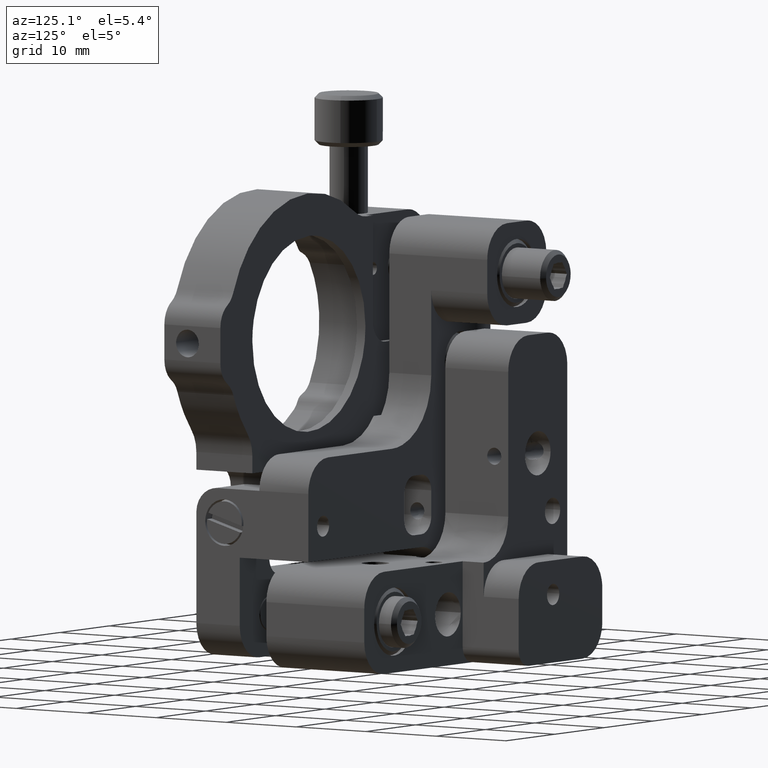
[diagram: clean part render]
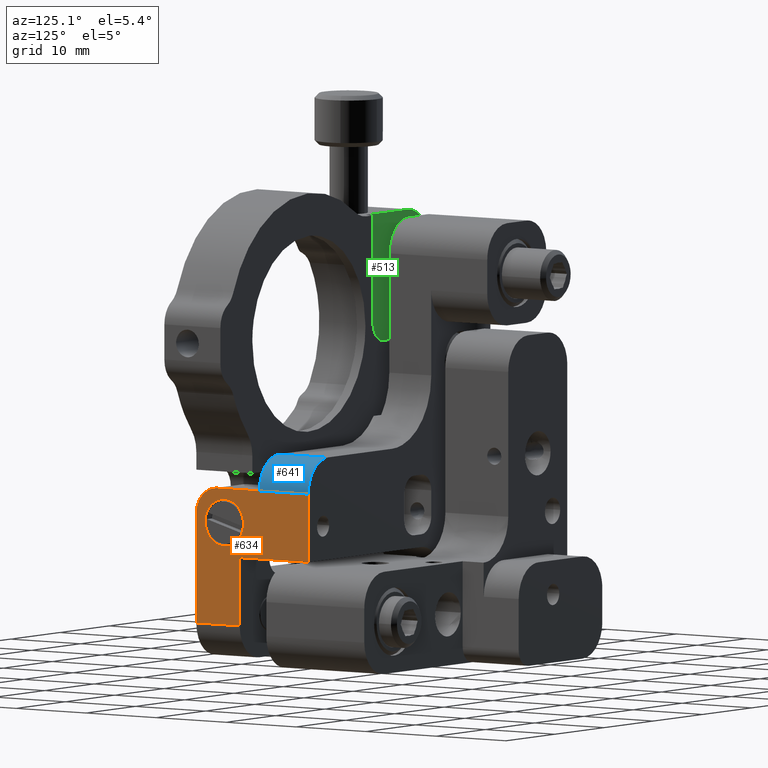
[diagram: same view with three faces highlighted in distinct colors, each labeled with its STEP entity id]
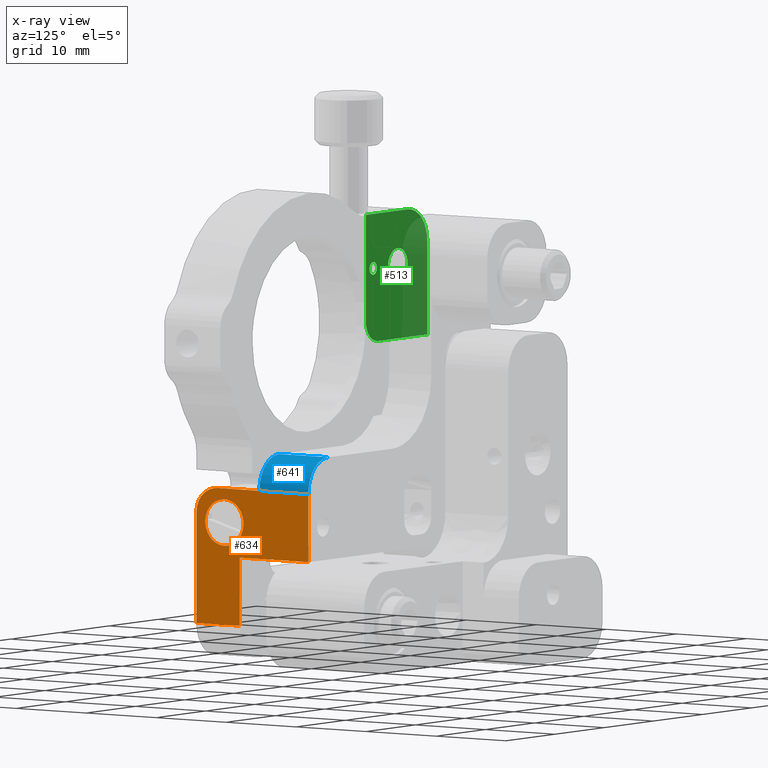
[diagram: x-ray of the same camera — body ghosted, the three highlighted faces saturated]
A machine part, auxiliary view with three faces highlighted in distinct colors.
The next image is the same camera in x-ray (body ghosted, the three faces saturated) — at least one of them is partly hidden behind the body in this view.
Their STEP definitions:

[orange] entity #634 — the highlighted face is a freeform B-spline surface patch.
#433=FACE_BOUND('',#1567,.T.);
#634=ADVANCED_FACE('',(#1081,#433),#15897,.T.);
#1081=FACE_OUTER_BOUND('',#1566,.T.);
#1566=EDGE_LOOP('',(#2856,#2857,#2858,#2859,#2860,#2861,#2862,#2863));
#1567=EDGE_LOOP('',(#2864,#2865));
#2856=ORIENTED_EDGE('',*,*,#12947,.F.);
#2857=ORIENTED_EDGE('',*,*,#12972,.F.);
#2858=ORIENTED_EDGE('',*,*,#13020,.T.);
#2859=ORIENTED_EDGE('',*,*,#12900,.F.);
#2860=ORIENTED_EDGE('',*,*,#13019,.F.);
#2861=ORIENTED_EDGE('',*,*,#13021,.T.);
#2862=ORIENTED_EDGE('',*,*,#12986,.F.);
#2863=ORIENTED_EDGE('',*,*,#12934,.F.);
#2864=ORIENTED_EDGE('',*,*,#13000,.F.);
#2865=ORIENTED_EDGE('',*,*,#13002,.F.);
#4971=PCURVE('',#15881,#7345);
#5025=PCURVE('',#15885,#7399);
#5043=PCURVE('',#15887,#7417);
#5082=PCURVE('',#15890,#7456);
#5133=PCURVE('',#16081,#7507);
#5168=PCURVE('',#16087,#7542);
#5173=PCURVE('',#16088,#7547);
#5228=PCURVE('',#16093,#7602);
#5230=PCURVE('',#15897,#7604);
#5231=PCURVE('',#15897,#7605);
#5232=PCURVE('',#15897,#7606);
#5233=PCURVE('',#15897,#7607);
#5234=PCURVE('',#15897,#7608);
#5235=PCURVE('',#15897,#7609);
#5236=PCURVE('',#15897,#7610);
#5237=PCURVE('',#15897,#7611);
#5238=PCURVE('',#15897,#7612);
#5239=PCURVE('',#15897,#7613);
#5271=PCURVE('',#16097,#7645);
#5282=PCURVE('',#15901,#7656);
#7345=DEFINITIONAL_REPRESENTATION('',(#9732),#34671);
#7399=DEFINITIONAL_REPRESENTATION('',(#9780),#34671);
#7417=DEFINITIONAL_REPRESENTATION('',(#9803),#34671);
#7456=DEFINITIONAL_REPRESENTATION('',(#9842),#34671);
#7507=DEFINITIONAL_REPRESENTATION('',(#9870),#34671);
#7542=DEFINITIONAL_REPRESENTATION('',(#9899),#34671);
#7547=DEFINITIONAL_REPRESENTATION('',(#9904),#34671);
#7602=DEFINITIONAL_REPRESENTATION('',(#9955),#34671);
#7604=DEFINITIONAL_REPRESENTATION('',(#9957),#34671);
#7605=DEFINITIONAL_REPRESENTATION('',(#9958),#34671);
#7606=DEFINITIONAL_REPRESENTATION('',(#9960),#34671);
#7607=DEFINITIONAL_REPRESENTATION('',(#9961),#34671);
#7608=DEFINITIONAL_REPRESENTATION('',(#14255),#34671);
#7609=DEFINITIONAL_REPRESENTATION('',(#9963),#34671);
#7610=DEFINITIONAL_REPRESENTATION('',(#9964),#34671);
#7611=DEFINITIONAL_REPRESENTATION('',(#9965),#34671);
#7612=DEFINITIONAL_REPRESENTATION('',(#14256),#34671);
#7613=DEFINITIONAL_REPRESENTATION('',(#14257),#34671);
#7645=DEFINITIONAL_REPRESENTATION('',(#10001),#34671);
#7656=DEFINITIONAL_REPRESENTATION('',(#10008),#34671);
#9731=B_SPLINE_CURVE_WITH_KNOTS('',1,(#22527,#22528),.UNSPECIFIED.,.F.,
 .F.,(2,2),(0.,6.),.UNSPECIFIED.);
#9732=B_SPLINE_CURVE_WITH_KNOTS('',1,(#22529,#22530),.UNSPECIFIED.,.F.,
 .F.,(2,2),(0.,6.),.UNSPECIFIED.);
#9779=B_SPLINE_CURVE_WITH_KNOTS('',1,(#22851,#22852),.UNSPECIFIED.,.F.,
 .F.,(2,2),(0.,8.),.UNSPECIFIED.);
#9780=B_SPLINE_CURVE_WITH_KNOTS('',1,(#22853,#22854),.UNSPECIFIED.,.F.,
 .F.,(2,2),(0.,8.),.UNSPECIFIED.);
#9802=B_SPLINE_CURVE_WITH_KNOTS('',1,(#22929,#22930),.UNSPECIFIED.,.F.,
 .F.,(2,2),(0.,9.8),.UNSPECIFIED.);
#9803=B_SPLINE_CURVE_WITH_KNOTS('',1,(#22931,#22932),.UNSPECIFIED.,.F.,
 .F.,(2,2),(0.,9.8),.UNSPECIFIED.);
#9841=B_SPLINE_CURVE_WITH_KNOTS('',1,(#23093,#23094),.UNSPECIFIED.,.F.,
 .F.,(2,2),(0.,7.99999999999996),.UNSPECIFIED.);
#9842=B_SPLINE_CURVE_WITH_KNOTS('',1,(#23095,#23096),.UNSPECIFIED.,.F.,
 .F.,(2,2),(0.,7.99999999999996),.UNSPECIFIED.);
#9870=B_SPLINE_CURVE_WITH_KNOTS('',1,(#23273,#23274),.UNSPECIFIED.,.F.,
 .F.,(2,2),(-6.2,0.),.UNSPECIFIED.);
#9899=B_SPLINE_CURVE_WITH_KNOTS('',1,(#23396,#23397),.UNSPECIFIED.,.F.,
 .F.,(2,2),(0.,8.57497714797334),.UNSPECIFIED.);
#9904=B_SPLINE_CURVE_WITH_KNOTS('',1,(#23413,#23414),.UNSPECIFIED.,.F.,
 .F.,(2,2),(8.57497714797334,17.1499542959467),.UNSPECIFIED.);
#9955=B_SPLINE_CURVE_WITH_KNOTS('',1,(#23649,#23650),.UNSPECIFIED.,.F.,
 .F.,(2,2),(-4.71238898038469,0.),.UNSPECIFIED.);
#9957=B_SPLINE_CURVE_WITH_KNOTS('',1,(#23653,#23654),.UNSPECIFIED.,.F.,
 .F.,(2,2),(0.,9.8),.UNSPECIFIED.);
#9958=B_SPLINE_CURVE_WITH_KNOTS('',1,(#23655,#23656),.UNSPECIFIED.,.F.,
 .F.,(2,2),(0.,7.99999999999996),.UNSPECIFIED.);
#9959=B_SPLINE_CURVE_WITH_KNOTS('',1,(#23657,#23658),.UNSPECIFIED.,.F.,
 .F.,(2,2),(-6.99999999999999,0.),.UNSPECIFIED.);
#9960=B_SPLINE_CURVE_WITH_KNOTS('',1,(#23659,#23660),.UNSPECIFIED.,.F.,
 .F.,(2,2),(-6.99999999999999,0.),.UNSPECIFIED.);
#9961=B_SPLINE_CURVE_WITH_KNOTS('',1,(#23661,#23662),.UNSPECIFIED.,.F.,
 .F.,(2,2),(0.,6.),.UNSPECIFIED.);
#9962=B_SPLINE_CURVE_WITH_KNOTS('',1,(#23666,#23667),.UNSPECIFIED.,.F.,
 .F.,(2,2),(0.,13.),.UNSPECIFIED.);
#9963=B_SPLINE_CURVE_WITH_KNOTS('',1,(#23668,#23669),.UNSPECIFIED.,.F.,
 .F.,(2,2),(0.,13.),.UNSPECIFIED.);
#9964=B_SPLINE_CURVE_WITH_KNOTS('',1,(#23670,#23671),.UNSPECIFIED.,.F.,
 .F.,(2,2),(-6.2,0.),.UNSPECIFIED.);
#9965=B_SPLINE_CURVE_WITH_KNOTS('',1,(#23672,#23673),.UNSPECIFIED.,.F.,
 .F.,(2,2),(0.,8.),.UNSPECIFIED.);
#10001=B_SPLINE_CURVE_WITH_KNOTS('',1,(#23758,#23759),.UNSPECIFIED.,.F.,
 .F.,(2,2),(-6.99999999999999,0.),.UNSPECIFIED.);
#10008=B_SPLINE_CURVE_WITH_KNOTS('',1,(#23784,#23785),.UNSPECIFIED.,.F.,
 .F.,(2,2),(0.,13.),.UNSPECIFIED.);
#11686=SURFACE_CURVE('',#9731,(#4971,#5233),.PCURVE_S1.);
#11720=SURFACE_CURVE('',#9779,(#5025,#5237),.PCURVE_S1.);
#11733=SURFACE_CURVE('',#9802,(#5043,#5230),.PCURVE_S1.);
#11758=SURFACE_CURVE('',#9841,(#5082,#5231),.PCURVE_S1.);
#11772=SURFACE_CURVE('',#14211,(#5133,#5236),.PCURVE_S1.);
#11786=SURFACE_CURVE('',#14231,(#5168,#5238),.PCURVE_S1.);
#11788=SURFACE_CURVE('',#14233,(#5173,#5239),.PCURVE_S1.);
#11805=SURFACE_CURVE('',#14254,(#5228,#5234),.PCURVE_S1.);
#11806=SURFACE_CURVE('',#9959,(#5232,#5271),.PCURVE_S1.);
#11807=SURFACE_CURVE('',#9962,(#5235,#5282),.PCURVE_S1.);
#12900=EDGE_CURVE('',#15300,#15201,#11686,.T.);
#12934=EDGE_CURVE('',#15324,#15325,#11720,.T.);
#12947=EDGE_CURVE('',#15335,#15324,#11733,.T.);
#12972=EDGE_CURVE('',#15351,#15335,#11758,.T.);
#12986=EDGE_CURVE('',#15325,#15361,#11772,.T.);
#13000=EDGE_CURVE('',#15368,#15369,#11786,.T.);
#13002=EDGE_CURVE('',#15369,#15368,#11788,.T.);
#13019=EDGE_CURVE('',#15377,#15300,#11805,.T.);
#13020=EDGE_CURVE('',#15351,#15201,#11806,.T.);
#13021=EDGE_CURVE('',#15377,#15361,#11807,.T.);
#14211=(
BOUNDED_CURVE()
B_SPLINE_CURVE(1,(#23271,#23272),.UNSPECIFIED.,.F.,.F.)
B_SPLINE_CURVE_WITH_KNOTS((2,2),(-6.2,0.),.UNSPECIFIED.)
CURVE()
GEOMETRIC_REPRESENTATION_ITEM()
RATIONAL_B_SPLINE_CURVE((1.,1.))
REPRESENTATION_ITEM('')
);
#14231=(
BOUNDED_CURVE()
B_SPLINE_CURVE(2,(#23391,#23392,#23393,#23394,#23395),.UNSPECIFIED.,.F.,
 .F.)
B_SPLINE_CURVE_WITH_KNOTS((3,2,3),(0.,4.28748857398667,8.57497714797334),
 .UNSPECIFIED.)
CURVE()
GEOMETRIC_REPRESENTATION_ITEM()
RATIONAL_B_SPLINE_CURVE((1.,0.707106781186548,1.,0.707106781186548,1.))
REPRESENTATION_ITEM('')
);
#14233=(
BOUNDED_CURVE()
B_SPLINE_CURVE(2,(#23408,#23409,#23410,#23411,#23412),.UNSPECIFIED.,.F.,
 .F.)
B_SPLINE_CURVE_WITH_KNOTS((3,2,3),(8.57497714797334,12.86246572196,17.1499542959467),
 .UNSPECIFIED.)
CURVE()
GEOMETRIC_REPRESENTATION_ITEM()
RATIONAL_B_SPLINE_CURVE((1.,0.707106781186548,1.,0.707106781186548,1.))
REPRESENTATION_ITEM('')
);
#14254=(
BOUNDED_CURVE()
B_SPLINE_CURVE(2,(#23646,#23647,#23648),.UNSPECIFIED.,.F.,.F.)
B_SPLINE_CURVE_WITH_KNOTS((3,3),(-4.71238898038469,0.),.UNSPECIFIED.)
CURVE()
GEOMETRIC_REPRESENTATION_ITEM()
RATIONAL_B_SPLINE_CURVE((1.,0.707106781186548,1.))
REPRESENTATION_ITEM('')
);
#14255=(
BOUNDED_CURVE()
B_SPLINE_CURVE(2,(#23663,#23664,#23665),.UNSPECIFIED.,.F.,.F.)
B_SPLINE_CURVE_WITH_KNOTS((3,3),(-4.71238898038469,0.),.UNSPECIFIED.)
CURVE()
GEOMETRIC_REPRESENTATION_ITEM()
RATIONAL_B_SPLINE_CURVE((1.,0.707106781186548,1.))
REPRESENTATION_ITEM('')
);
#14256=(
BOUNDED_CURVE()
B_SPLINE_CURVE(2,(#23674,#23675,#23676,#23677,#23678),.UNSPECIFIED.,.F.,
 .F.)
B_SPLINE_CURVE_WITH_KNOTS((3,2,3),(0.,4.28748857398667,8.57497714797334),
 .UNSPECIFIED.)
CURVE()
GEOMETRIC_REPRESENTATION_ITEM()
RATIONAL_B_SPLINE_CURVE((1.,0.707106781186548,1.,0.707106781186548,1.))
REPRESENTATION_ITEM('')
);
#14257=(
BOUNDED_CURVE()
B_SPLINE_CURVE(2,(#23679,#23680,#23681,#23682,#23683),.UNSPECIFIED.,.F.,
 .F.)
B_SPLINE_CURVE_WITH_KNOTS((3,2,3),(8.57497714797334,12.86246572196,17.1499542959467),
 .UNSPECIFIED.)
CURVE()
GEOMETRIC_REPRESENTATION_ITEM()
RATIONAL_B_SPLINE_CURVE((1.,0.707106781186548,1.,0.707106781186548,1.))
REPRESENTATION_ITEM('')
);
#15201=VERTEX_POINT('',#21034);
#15300=VERTEX_POINT('',#21133);
#15324=VERTEX_POINT('',#21157);
#15325=VERTEX_POINT('',#21158);
#15335=VERTEX_POINT('',#21168);
#15351=VERTEX_POINT('',#21184);
#15361=VERTEX_POINT('',#21194);
#15368=VERTEX_POINT('',#21201);
#15369=VERTEX_POINT('',#21202);
#15377=VERTEX_POINT('',#21210);
#15881=B_SPLINE_SURFACE_WITH_KNOTS('',1,1,((#20393,#20394),(#20395,#20396)),
 .UNSPECIFIED.,.F.,.F.,.F.,(2,2),(2,2),(-7.43999999999999,5.55111512312578E-16),
(-24.4525492133613,-3.41948691584548E-14),.UNSPECIFIED.);
#15885=B_SPLINE_SURFACE_WITH_KNOTS('',1,1,((#20553,#20554),(#20555,#20556)),
 .UNSPECIFIED.,.F.,.F.,.F.,(2,2),(2,2),(-32.6399999999997,-4.39648317751562E-14),
(-2.22044604925031E-16,14.64),.UNSPECIFIED.);
#15887=B_SPLINE_SURFACE_WITH_KNOTS('',1,1,((#20561,#20562),(#20563,#20564)),
 .UNSPECIFIED.,.F.,.F.,.F.,(2,2),(2,2),(-12.,-4.44089209850063E-16),(-27.8399999999997,
-3.81916720471054E-14),.UNSPECIFIED.);
#15890=B_SPLINE_SURFACE_WITH_KNOTS('',1,1,((#20609,#20610),(#20611,#20612)),
 .UNSPECIFIED.,.F.,.F.,.F.,(2,2),(2,2),(-44.6399999999998,-3.37507799486048E-14),
(2.93098878501041E-14,50.64),.UNSPECIFIED.);
#15897=B_SPLINE_SURFACE_WITH_KNOTS('',1,1,((#20907,#20908),(#20909,#20910)),
 .UNSPECIFIED.,.F.,.F.,.F.,(2,2),(2,2),(-19.44,-3.5527136788005E-15),(-19.44,
0.),.UNSPECIFIED.);
#15901=B_SPLINE_SURFACE_WITH_KNOTS('',1,1,((#20995,#20996),(#20997,#20998)),
 .UNSPECIFIED.,.F.,.F.,.F.,(2,2),(2,2),(4.39648317751562E-14,44.6399999999997),
(-3.10862446895044E-15,20.64),.UNSPECIFIED.);
#16081=(
BOUNDED_SURFACE()
B_SPLINE_SURFACE(2,1,((#20657,#20658),(#20659,#20660),(#20661,#20662),(#20663,
#20664),(#20665,#20666),(#20667,#20668),(#20669,#20670),(#20671,#20672),
(#20673,#20674)),.UNSPECIFIED.,.T.,.F.,.F.)
B_SPLINE_SURFACE_WITH_KNOTS((3,2,2,2,3),(2,2),(0.,1.5707963267949,3.14159265358979,
4.71238898038469,6.28318530717959),(0.,7.68),.UNSPECIFIED.)
GEOMETRIC_REPRESENTATION_ITEM()
RATIONAL_B_SPLINE_SURFACE(((1.,1.),(0.707106781186548,0.707106781186548),
(1.,1.),(0.707106781186548,0.707106781186548),(1.,1.),(0.707106781186548,
0.707106781186548),(1.,1.),(0.707106781186548,0.707106781186548),(1.,1.)))
REPRESENTATION_ITEM('')
SURFACE()
);
#16087=(
BOUNDED_SURFACE()
B_SPLINE_SURFACE(1,2,((#20769,#20770,#20771,#20772,#20773,#20774,#20775,
#20776,#20777),(#20778,#20779,#20780,#20781,#20782,#20783,#20784,#20785,
#20786)),.UNSPECIFIED.,.F.,.F.,.F.)
B_SPLINE_SURFACE_WITH_KNOTS((2,2),(3,2,2,2,3),(0.,7.44),(0.,1.5707963267949,
3.14159265358979,4.71238898038469,6.28318530717959),.UNSPECIFIED.)
GEOMETRIC_REPRESENTATION_ITEM()
RATIONAL_B_SPLINE_SURFACE(((1.,0.707106781186548,1.,0.707106781186548,1.,
0.707106781186548,1.,0.707106781186548,1.),(1.,0.707106781186548,1.,0.707106781186548,
1.,0.707106781186548,1.,0.707106781186548,1.)))
REPRESENTATION_ITEM('')
SURFACE()
);
#16088=(
BOUNDED_SURFACE()
B_SPLINE_SURFACE(1,2,((#20787,#20788,#20789,#20790,#20791,#20792,#20793,
#20794,#20795),(#20796,#20797,#20798,#20799,#20800,#20801,#20802,#20803,
#20804)),.UNSPECIFIED.,.F.,.F.,.F.)
B_SPLINE_SURFACE_WITH_KNOTS((2,2),(3,2,2,2,3),(0.,7.44),(0.,1.5707963267949,
3.14159265358979,4.71238898038469,6.28318530717959),.UNSPECIFIED.)
GEOMETRIC_REPRESENTATION_ITEM()
RATIONAL_B_SPLINE_SURFACE(((1.,0.707106781186548,1.,0.707106781186548,1.,
0.707106781186548,1.,0.707106781186548,1.),(1.,0.707106781186548,1.,0.707106781186548,
1.,0.707106781186548,1.,0.707106781186548,1.)))
REPRESENTATION_ITEM('')
SURFACE()
);
#16093=(
BOUNDED_SURFACE()
B_SPLINE_SURFACE(2,1,((#20889,#20890),(#20891,#20892),(#20893,#20894),(#20895,
#20896),(#20897,#20898),(#20899,#20900),(#20901,#20902),(#20903,#20904),
(#20905,#20906)),.UNSPECIFIED.,.T.,.F.,.F.)
B_SPLINE_SURFACE_WITH_KNOTS((3,2,2,2,3),(2,2),(0.,1.5707963267949,3.14159265358979,
4.71238898038469,6.28318530717959),(0.,7.44),.UNSPECIFIED.)
GEOMETRIC_REPRESENTATION_ITEM()
RATIONAL_B_SPLINE_SURFACE(((1.,1.),(0.707106781186548,0.707106781186548),
(1.,1.),(0.707106781186548,0.707106781186548),(1.,1.),(0.707106781186548,
0.707106781186548),(1.,1.),(0.707106781186548,0.707106781186548),(1.,1.)))
REPRESENTATION_ITEM('')
SURFACE()
);
#16097=(
BOUNDED_SURFACE()
B_SPLINE_SURFACE(2,1,((#20977,#20978),(#20979,#20980),(#20981,#20982),(#20983,
#20984),(#20985,#20986),(#20987,#20988),(#20989,#20990),(#20991,#20992),
(#20993,#20994)),.UNSPECIFIED.,.T.,.F.,.F.)
B_SPLINE_SURFACE_WITH_KNOTS((3,2,2,2,3),(2,2),(0.,1.5707963267949,3.14159265358979,
4.71238898038469,6.28318530717959),(0.,8.63999999999999),.UNSPECIFIED.)
GEOMETRIC_REPRESENTATION_ITEM()
RATIONAL_B_SPLINE_SURFACE(((1.,1.),(0.707106781186548,0.707106781186548),
(1.,1.),(0.707106781186548,0.707106781186548),(1.,1.),(0.707106781186548,
0.707106781186548),(1.,1.),(0.707106781186548,0.707106781186548),(1.,1.)))
REPRESENTATION_ITEM('')
SURFACE()
);
#20393=CARTESIAN_POINT('',(75.5087519937685,13.5252520797228,-7.71999999999999));
#20394=CARTESIAN_POINT('',(99.9613012071298,13.5252520797228,-7.71999999999999));
#20395=CARTESIAN_POINT('',(75.5087519937685,13.5252520797228,-0.279999999999995));
#20396=CARTESIAN_POINT('',(99.9613012071298,13.5252520797228,-0.279999999999995));
#20553=CARTESIAN_POINT('',(74.8264644282153,-7.79474792027717,-3.8));
#20554=CARTESIAN_POINT('',(74.8264644282153,6.84525207972284,-3.8));
#20555=CARTESIAN_POINT('',(107.466464428215,-7.79474792027717,-3.8));
#20556=CARTESIAN_POINT('',(107.466464428215,6.84525207972284,-3.8));
#20561=CARTESIAN_POINT('',(75.2264644282153,5.52525207972284,7.1));
#20562=CARTESIAN_POINT('',(103.066464428215,5.52525207972284,7.1));
#20563=CARTESIAN_POINT('',(75.2264644282153,5.52525207972284,-4.9));
#20564=CARTESIAN_POINT('',(103.066464428215,5.52525207972284,-4.9));
#20609=CARTESIAN_POINT('',(73.8264644282152,-10.7947479202772,6.));
#20610=CARTESIAN_POINT('',(73.8264644282152,39.8452520797228,6.));
#20611=CARTESIAN_POINT('',(118.466464428215,-10.7947479202772,6.));
#20612=CARTESIAN_POINT('',(118.466464428215,39.8452520797228,6.));
#20657=CARTESIAN_POINT('',(81.6464644282153,1.52525207972284,-3.06));
#20658=CARTESIAN_POINT('',(81.6464644282153,1.52525207972284,-10.74));
#20659=CARTESIAN_POINT('',(85.6464644282153,1.52525207972284,-3.06));
#20660=CARTESIAN_POINT('',(85.6464644282153,1.52525207972284,-10.74));
#20661=CARTESIAN_POINT('',(85.6464644282153,-2.47474792027716,-3.06));
#20662=CARTESIAN_POINT('',(85.6464644282153,-2.47474792027716,-10.74));
#20663=CARTESIAN_POINT('',(85.6464644282153,-6.47474792027716,-3.06));
#20664=CARTESIAN_POINT('',(85.6464644282153,-6.47474792027716,-10.74));
#20665=CARTESIAN_POINT('',(81.6464644282153,-6.47474792027716,-3.06));
#20666=CARTESIAN_POINT('',(81.6464644282153,-6.47474792027716,-10.74));
#20667=CARTESIAN_POINT('',(77.6464644282153,-6.47474792027716,-3.06));
#20668=CARTESIAN_POINT('',(77.6464644282153,-6.47474792027716,-10.74));
#20669=CARTESIAN_POINT('',(77.6464644282153,-2.47474792027716,-3.06));
#20670=CARTESIAN_POINT('',(77.6464644282153,-2.47474792027716,-10.74));
#20671=CARTESIAN_POINT('',(77.6464644282153,1.52525207972284,-3.06));
#20672=CARTESIAN_POINT('',(77.6464644282153,1.52525207972284,-10.74));
#20673=CARTESIAN_POINT('',(81.6464644282153,1.52525207972284,-3.06));
#20674=CARTESIAN_POINT('',(81.6464644282153,1.52525207972284,-10.74));
#20769=CARTESIAN_POINT('',(84.3664644282153,6.79575207972284,-6.));
#20770=CARTESIAN_POINT('',(84.3664644282153,6.79575207972284,-3.2705));
#20771=CARTESIAN_POINT('',(84.3664644282153,9.52525207972284,-3.2705));
#20772=CARTESIAN_POINT('',(84.3664644282153,12.2547520797228,-3.2705));
#20773=CARTESIAN_POINT('',(84.3664644282153,12.2547520797228,-6.));
#20774=CARTESIAN_POINT('',(84.3664644282153,12.2547520797228,-8.7295));
#20775=CARTESIAN_POINT('',(84.3664644282153,9.52525207972284,-8.7295));
#20776=CARTESIAN_POINT('',(84.3664644282153,6.79575207972284,-8.7295));
#20777=CARTESIAN_POINT('',(84.3664644282153,6.79575207972284,-6.));
#20778=CARTESIAN_POINT('',(76.9264644282153,6.79575207972285,-6.));
#20779=CARTESIAN_POINT('',(76.9264644282153,6.79575207972285,-3.2705));
#20780=CARTESIAN_POINT('',(76.9264644282153,9.52525207972284,-3.2705));
#20781=CARTESIAN_POINT('',(76.9264644282153,12.2547520797228,-3.2705));
#20782=CARTESIAN_POINT('',(76.9264644282153,12.2547520797228,-6.));
#20783=CARTESIAN_POINT('',(76.9264644282153,12.2547520797228,-8.7295));
#20784=CARTESIAN_POINT('',(76.9264644282153,9.52525207972284,-8.7295));
#20785=CARTESIAN_POINT('',(76.9264644282153,6.79575207972285,-8.7295));
#20786=CARTESIAN_POINT('',(76.9264644282153,6.79575207972285,-6.));
#20787=CARTESIAN_POINT('',(84.3664644282153,6.79575207972284,-6.));
#20788=CARTESIAN_POINT('',(84.3664644282153,6.79575207972284,-3.2705));
#20789=CARTESIAN_POINT('',(84.3664644282153,9.52525207972284,-3.2705));
#20790=CARTESIAN_POINT('',(84.3664644282153,12.2547520797228,-3.2705));
#20791=CARTESIAN_POINT('',(84.3664644282153,12.2547520797228,-6.));
#20792=CARTESIAN_POINT('',(84.3664644282153,12.2547520797228,-8.7295));
#20793=CARTESIAN_POINT('',(84.3664644282153,9.52525207972284,-8.7295));
#20794=CARTESIAN_POINT('',(84.3664644282153,6.79575207972284,-8.7295));
#20795=CARTESIAN_POINT('',(84.3664644282153,6.79575207972284,-6.));
#20796=CARTESIAN_POINT('',(76.9264644282153,6.79575207972285,-6.));
#20797=CARTESIAN_POINT('',(76.9264644282153,6.79575207972285,-3.2705));
#20798=CARTESIAN_POINT('',(76.9264644282153,9.52525207972284,-3.2705));
#20799=CARTESIAN_POINT('',(76.9264644282153,12.2547520797228,-3.2705));
#20800=CARTESIAN_POINT('',(76.9264644282153,12.2547520797228,-6.));
#20801=CARTESIAN_POINT('',(76.9264644282153,12.2547520797228,-8.7295));
#20802=CARTESIAN_POINT('',(76.9264644282153,9.52525207972284,-8.7295));
#20803=CARTESIAN_POINT('',(76.9264644282153,6.79575207972285,-8.7295));
#20804=CARTESIAN_POINT('',(76.9264644282153,6.79575207972285,-6.));
#20889=CARTESIAN_POINT('',(76.9264644282153,7.5252520797228,-6.99999999999999));
#20890=CARTESIAN_POINT('',(84.3664644282153,7.5252520797228,-6.99999999999999));
#20891=CARTESIAN_POINT('',(76.9264644282153,7.5252520797228,-9.99999999999999));
#20892=CARTESIAN_POINT('',(84.3664644282153,7.5252520797228,-9.99999999999999));
#20893=CARTESIAN_POINT('',(76.9264644282153,10.5252520797228,-9.99999999999999));
#20894=CARTESIAN_POINT('',(84.3664644282153,10.5252520797228,-9.99999999999999));
#20895=CARTESIAN_POINT('',(76.9264644282153,13.5252520797228,-9.99999999999999));
#20896=CARTESIAN_POINT('',(84.3664644282153,13.5252520797228,-9.99999999999999));
#20897=CARTESIAN_POINT('',(76.9264644282153,13.5252520797228,-6.99999999999999));
#20898=CARTESIAN_POINT('',(84.3664644282153,13.5252520797228,-6.99999999999999));
#20899=CARTESIAN_POINT('',(76.9264644282153,13.5252520797228,-3.99999999999999));
#20900=CARTESIAN_POINT('',(84.3664644282153,13.5252520797228,-3.99999999999999));
#20901=CARTESIAN_POINT('',(76.9264644282153,10.5252520797228,-3.99999999999999));
#20902=CARTESIAN_POINT('',(84.3664644282153,10.5252520797228,-3.99999999999999));
#20903=CARTESIAN_POINT('',(76.9264644282153,7.5252520797228,-3.99999999999999));
#20904=CARTESIAN_POINT('',(84.3664644282153,7.5252520797228,-3.99999999999999));
#20905=CARTESIAN_POINT('',(76.9264644282153,7.5252520797228,-6.99999999999999));
#20906=CARTESIAN_POINT('',(84.3664644282153,7.5252520797228,-6.99999999999999));
#20907=CARTESIAN_POINT('',(77.6464644282153,15.2452520797228,-11.72));
#20908=CARTESIAN_POINT('',(77.6464644282153,15.2452520797228,7.72));
#20909=CARTESIAN_POINT('',(77.6464644282153,-4.19474792027716,-11.72));
#20910=CARTESIAN_POINT('',(77.6464644282153,-4.19474792027716,7.72));
#20977=CARTESIAN_POINT('',(81.6464644282153,9.52525207972291,6.82));
#20978=CARTESIAN_POINT('',(81.6464644282153,9.52525207972291,-1.81999999999999));
#20979=CARTESIAN_POINT('',(77.6464644282153,9.52525207972291,6.82));
#20980=CARTESIAN_POINT('',(77.6464644282153,9.52525207972291,-1.81999999999999));
#20981=CARTESIAN_POINT('',(77.6464644282153,13.5252520797229,6.82));
#20982=CARTESIAN_POINT('',(77.6464644282153,13.5252520797229,-1.81999999999999));
#20983=CARTESIAN_POINT('',(77.6464644282153,17.5252520797229,6.82));
#20984=CARTESIAN_POINT('',(77.6464644282153,17.5252520797229,-1.81999999999999));
#20985=CARTESIAN_POINT('',(81.6464644282153,17.5252520797229,6.82));
#20986=CARTESIAN_POINT('',(81.6464644282153,17.5252520797229,-1.81999999999999));
#20987=CARTESIAN_POINT('',(85.6464644282153,17.5252520797229,6.82));
#20988=CARTESIAN_POINT('',(85.6464644282153,17.5252520797229,-1.81999999999999));
#20989=CARTESIAN_POINT('',(85.6464644282153,13.5252520797229,6.82));
#20990=CARTESIAN_POINT('',(85.6464644282153,13.5252520797229,-1.81999999999999));
#20991=CARTESIAN_POINT('',(85.6464644282153,9.52525207972291,6.82));
#20992=CARTESIAN_POINT('',(85.6464644282153,9.52525207972291,-1.81999999999999));
#20993=CARTESIAN_POINT('',(81.6464644282153,9.52525207972291,6.82));
#20994=CARTESIAN_POINT('',(81.6464644282153,9.52525207972291,-1.81999999999999));
#20995=CARTESIAN_POINT('',(118.466464428215,-8.29474792027717,-10.));
#20996=CARTESIAN_POINT('',(118.466464428215,12.3452520797228,-10.));
#20997=CARTESIAN_POINT('',(73.8264644282153,-8.29474792027717,-10.));
#20998=CARTESIAN_POINT('',(73.8264644282153,12.3452520797228,-10.));
#21034=CARTESIAN_POINT('',(77.6464644282153,13.5252520797228,-0.999999999999995));
#21133=CARTESIAN_POINT('',(77.6464644282153,13.5252520797228,-6.99999999999999));
#21157=CARTESIAN_POINT('',(77.6464644282153,5.52525207972284,-3.8));
#21158=CARTESIAN_POINT('',(77.6464644282153,-2.47474792027716,-3.8));
#21168=CARTESIAN_POINT('',(77.6464644282153,5.52525207972284,6.));
#21184=CARTESIAN_POINT('',(77.6464644282153,13.5252520797228,6.));
#21194=CARTESIAN_POINT('',(77.6464644282153,-2.47474792027716,-10.));
#21201=CARTESIAN_POINT('',(77.6464644282153,12.2547520797228,-6.));
#21202=CARTESIAN_POINT('',(77.6464644282153,6.79575207972285,-6.));
#21210=CARTESIAN_POINT('',(77.6464644282153,10.5252520797228,-9.99999999999999));
#22527=CARTESIAN_POINT('',(77.6464644282153,13.5252520797228,-6.99999999999999));
#22528=CARTESIAN_POINT('',(77.6464644282153,13.5252520797228,-0.999999999999995));
#22529=CARTESIAN_POINT('',(-6.71999999999999,-22.3148367789145));
#22530=CARTESIAN_POINT('',(-0.719999999999999,-22.3148367789145));
#22851=CARTESIAN_POINT('',(77.6464644282153,5.52525207972284,-3.8));
#22852=CARTESIAN_POINT('',(77.6464644282153,-2.47474792027716,-3.8));
#22853=CARTESIAN_POINT('',(-29.8199999999997,13.32));
#22854=CARTESIAN_POINT('',(-29.8199999999997,5.32000000000001));
#22929=CARTESIAN_POINT('',(77.6464644282153,5.52525207972284,6.));
#22930=CARTESIAN_POINT('',(77.6464644282153,5.52525207972284,-3.8));
#22931=CARTESIAN_POINT('',(-10.9,-25.4199999999997));
#22932=CARTESIAN_POINT('',(-1.1,-25.4199999999997));
#23093=CARTESIAN_POINT('',(77.6464644282153,13.5252520797228,6.));
#23094=CARTESIAN_POINT('',(77.6464644282153,5.52525207972284,6.));
#23095=CARTESIAN_POINT('',(-40.8199999999997,24.32));
#23096=CARTESIAN_POINT('',(-40.8199999999997,16.32));
#23271=CARTESIAN_POINT('',(77.6464644282153,-2.47474792027716,-3.8));
#23272=CARTESIAN_POINT('',(77.6464644282153,-2.47474792027716,-10.));
#23273=CARTESIAN_POINT('',(4.71238898038469,0.74));
#23274=CARTESIAN_POINT('',(4.71238898038469,6.94));
#23391=CARTESIAN_POINT('',(77.6464644282153,12.2547520797228,-6.));
#23392=CARTESIAN_POINT('',(77.6464644282153,12.2547520797228,-8.7295));
#23393=CARTESIAN_POINT('',(77.6464644282153,9.52525207972284,-8.7295));
#23394=CARTESIAN_POINT('',(77.6464644282153,6.79575207972285,-8.7295));
#23395=CARTESIAN_POINT('',(77.6464644282153,6.79575207972285,-6.));
#23396=CARTESIAN_POINT('',(6.72,3.14159265358979));
#23397=CARTESIAN_POINT('',(6.72,6.28318530717959));
#23408=CARTESIAN_POINT('',(77.6464644282153,6.79575207972285,-6.));
#23409=CARTESIAN_POINT('',(77.6464644282153,6.79575207972285,-3.2705));
#23410=CARTESIAN_POINT('',(77.6464644282153,9.52525207972284,-3.2705));
#23411=CARTESIAN_POINT('',(77.6464644282153,12.2547520797228,-3.2705));
#23412=CARTESIAN_POINT('',(77.6464644282153,12.2547520797228,-6.));
#23413=CARTESIAN_POINT('',(6.72,0.));
#23414=CARTESIAN_POINT('',(6.72,3.14159265358979));
#23646=CARTESIAN_POINT('',(77.6464644282153,10.5252520797228,-9.99999999999999));
#23647=CARTESIAN_POINT('',(77.6464644282153,13.5252520797228,-9.99999999999999));
#23648=CARTESIAN_POINT('',(77.6464644282153,13.5252520797228,-6.99999999999999));
#23649=CARTESIAN_POINT('',(1.5707963267949,0.719999999999999));
#23650=CARTESIAN_POINT('',(3.14159265358979,0.719999999999999));
#23653=CARTESIAN_POINT('',(-9.72,-1.72));
#23654=CARTESIAN_POINT('',(-9.72,-11.52));
#23655=CARTESIAN_POINT('',(-17.72,-1.72));
#23656=CARTESIAN_POINT('',(-9.72,-1.72));
#23657=CARTESIAN_POINT('',(77.6464644282153,13.5252520797228,6.));
#23658=CARTESIAN_POINT('',(77.6464644282153,13.5252520797228,-0.999999999999995));
#23659=CARTESIAN_POINT('',(-17.72,-1.72));
#23660=CARTESIAN_POINT('',(-17.72,-8.72));
#23661=CARTESIAN_POINT('',(-17.72,-14.72));
#23662=CARTESIAN_POINT('',(-17.72,-8.72));
#23663=CARTESIAN_POINT('',(-14.72,-17.72));
#23664=CARTESIAN_POINT('',(-17.72,-17.72));
#23665=CARTESIAN_POINT('',(-17.72,-14.72));
#23666=CARTESIAN_POINT('',(77.6464644282153,10.5252520797228,-9.99999999999999));
#23667=CARTESIAN_POINT('',(77.6464644282153,-2.47474792027716,-10.));
#23668=CARTESIAN_POINT('',(-14.72,-17.72));
#23669=CARTESIAN_POINT('',(-1.72,-17.72));
#23670=CARTESIAN_POINT('',(-1.72,-11.52));
#23671=CARTESIAN_POINT('',(-1.72,-17.72));
#23672=CARTESIAN_POINT('',(-9.72,-11.52));
#23673=CARTESIAN_POINT('',(-1.72,-11.52));
#23674=CARTESIAN_POINT('',(-16.4495,-13.72));
#23675=CARTESIAN_POINT('',(-16.4495,-16.4495));
#23676=CARTESIAN_POINT('',(-13.72,-16.4495));
#23677=CARTESIAN_POINT('',(-10.9905,-16.4495));
#23678=CARTESIAN_POINT('',(-10.9905,-13.72));
#23679=CARTESIAN_POINT('',(-10.9905,-13.72));
#23680=CARTESIAN_POINT('',(-10.9905,-10.9905));
#23681=CARTESIAN_POINT('',(-13.72,-10.9905));
#23682=CARTESIAN_POINT('',(-16.4495,-10.9905));
#23683=CARTESIAN_POINT('',(-16.4495,-13.72));
#23758=CARTESIAN_POINT('',(1.57079632679488,0.82));
#23759=CARTESIAN_POINT('',(1.57079632679488,7.82));
#23784=CARTESIAN_POINT('',(40.8199999999997,18.82));
#23785=CARTESIAN_POINT('',(40.8199999999997,5.82000000000001));
#34671=(
GEOMETRIC_REPRESENTATION_CONTEXT(2)
PARAMETRIC_REPRESENTATION_CONTEXT()
REPRESENTATION_CONTEXT('pspace','')
);

[blue] entity #641 — the highlighted face is a freeform B-spline surface patch.
#641=ADVANCED_FACE('',(#1088),#16097,.T.);
#1088=FACE_OUTER_BOUND('',#1574,.T.);
#1574=EDGE_LOOP('',(#2894,#2895,#2896,#2897));
#2894=ORIENTED_EDGE('',*,*,#12971,.F.);
#2895=ORIENTED_EDGE('',*,*,#13027,.F.);
#2896=ORIENTED_EDGE('',*,*,#12766,.F.);
#2897=ORIENTED_EDGE('',*,*,#13020,.F.);
#4756=PCURVE('',#15873,#7130);
#5081=PCURVE('',#15890,#7455);
#5232=PCURVE('',#15897,#7606);
#5266=PCURVE('',#15900,#7640);
#5268=PCURVE('',#16097,#7642);
#5269=PCURVE('',#16097,#7643);
#5270=PCURVE('',#16097,#7644);
#5271=PCURVE('',#16097,#7645);
#7130=DEFINITIONAL_REPRESENTATION('',(#14001),#34671);
#7455=DEFINITIONAL_REPRESENTATION('',(#14174),#34671);
#7606=DEFINITIONAL_REPRESENTATION('',(#9960),#34671);
#7640=DEFINITIONAL_REPRESENTATION('',(#9996),#34671);
#7642=DEFINITIONAL_REPRESENTATION('',(#9998),#34671);
#7643=DEFINITIONAL_REPRESENTATION('',(#9999),#34671);
#7644=DEFINITIONAL_REPRESENTATION('',(#10000),#34671);
#7645=DEFINITIONAL_REPRESENTATION('',(#10001),#34671);
#9959=B_SPLINE_CURVE_WITH_KNOTS('',1,(#23657,#23658),.UNSPECIFIED.,.F.,
 .F.,(2,2),(-6.99999999999999,0.),.UNSPECIFIED.);
#9960=B_SPLINE_CURVE_WITH_KNOTS('',1,(#23659,#23660),.UNSPECIFIED.,.F.,
 .F.,(2,2),(-6.99999999999999,0.),.UNSPECIFIED.);
#9995=B_SPLINE_CURVE_WITH_KNOTS('',1,(#23746,#23747),.UNSPECIFIED.,.F.,
 .F.,(2,2),(0.,6.99999999999999),.UNSPECIFIED.);
#9996=B_SPLINE_CURVE_WITH_KNOTS('',1,(#23748,#23749),.UNSPECIFIED.,.F.,
 .F.,(2,2),(0.,6.99999999999999),.UNSPECIFIED.);
#9998=B_SPLINE_CURVE_WITH_KNOTS('',1,(#23752,#23753),.UNSPECIFIED.,.F.,
 .F.,(2,2),(0.,6.28318530717967),.UNSPECIFIED.);
#9999=B_SPLINE_CURVE_WITH_KNOTS('',1,(#23754,#23755),.UNSPECIFIED.,.F.,
 .F.,(2,2),(0.,6.99999999999999),.UNSPECIFIED.);
#10000=B_SPLINE_CURVE_WITH_KNOTS('',1,(#23756,#23757),.UNSPECIFIED.,.F.,
 .F.,(2,2),(-6.28318530717967,0.),.UNSPECIFIED.);
#10001=B_SPLINE_CURVE_WITH_KNOTS('',1,(#23758,#23759),.UNSPECIFIED.,.F.,
 .F.,(2,2),(-6.99999999999999,0.),.UNSPECIFIED.);
#11552=SURFACE_CURVE('',#14000,(#4756,#5270),.PCURVE_S1.);
#11757=SURFACE_CURVE('',#14173,(#5081,#5268),.PCURVE_S1.);
#11806=SURFACE_CURVE('',#9959,(#5232,#5271),.PCURVE_S1.);
#11813=SURFACE_CURVE('',#9995,(#5266,#5269),.PCURVE_S1.);
#12766=EDGE_CURVE('',#15201,#15202,#11552,.T.);
#12971=EDGE_CURVE('',#15350,#15351,#11757,.T.);
#13020=EDGE_CURVE('',#15351,#15201,#11806,.T.);
#13027=EDGE_CURVE('',#15202,#15350,#11813,.T.);
#14000=(
BOUNDED_CURVE()
B_SPLINE_CURVE(2,(#21315,#21316,#21317),.UNSPECIFIED.,.F.,.F.)
B_SPLINE_CURVE_WITH_KNOTS((3,3),(-6.28318530717967,0.),.UNSPECIFIED.)
CURVE()
GEOMETRIC_REPRESENTATION_ITEM()
RATIONAL_B_SPLINE_CURVE((1.,0.70710678118654,1.))
REPRESENTATION_ITEM('')
);
#14001=(
BOUNDED_CURVE()
B_SPLINE_CURVE(2,(#21318,#21319,#21320),.UNSPECIFIED.,.F.,.F.)
B_SPLINE_CURVE_WITH_KNOTS((3,3),(-6.28318530717967,0.),.UNSPECIFIED.)
CURVE()
GEOMETRIC_REPRESENTATION_ITEM()
RATIONAL_B_SPLINE_CURVE((1.,0.707106781186545,1.))
REPRESENTATION_ITEM('')
);
#14173=(
BOUNDED_CURVE()
B_SPLINE_CURVE(2,(#23087,#23088,#23089),.UNSPECIFIED.,.F.,.F.)
B_SPLINE_CURVE_WITH_KNOTS((3,3),(0.,6.28318530717967),.UNSPECIFIED.)
CURVE()
GEOMETRIC_REPRESENTATION_ITEM()
RATIONAL_B_SPLINE_CURVE((1.,0.707106781186537,1.))
REPRESENTATION_ITEM('')
);
#14174=(
BOUNDED_CURVE()
B_SPLINE_CURVE(2,(#23090,#23091,#23092),.UNSPECIFIED.,.F.,.F.)
B_SPLINE_CURVE_WITH_KNOTS((3,3),(0.,6.28318530717967),.UNSPECIFIED.)
CURVE()
GEOMETRIC_REPRESENTATION_ITEM()
RATIONAL_B_SPLINE_CURVE((1.,0.707106781186537,1.))
REPRESENTATION_ITEM('')
);
#15201=VERTEX_POINT('',#21034);
#15202=VERTEX_POINT('',#21035);
#15350=VERTEX_POINT('',#21183);
#15351=VERTEX_POINT('',#21184);
#15873=B_SPLINE_SURFACE_WITH_KNOTS('',1,1,((#19909,#19910),(#19911,#19912)),
 .UNSPECIFIED.,.F.,.F.,.F.,(2,2),(2,2),(3.5527136788005E-14,44.6399999999998),
(-1.20792265079217E-13,8.64000000000012),.UNSPECIFIED.);
#15890=B_SPLINE_SURFACE_WITH_KNOTS('',1,1,((#20609,#20610),(#20611,#20612)),
 .UNSPECIFIED.,.F.,.F.,.F.,(2,2),(2,2),(-44.6399999999998,-3.37507799486048E-14),
(2.93098878501041E-14,50.64),.UNSPECIFIED.);
#15897=B_SPLINE_SURFACE_WITH_KNOTS('',1,1,((#20907,#20908),(#20909,#20910)),
 .UNSPECIFIED.,.F.,.F.,.F.,(2,2),(2,2),(-19.44,-3.5527136788005E-15),(-19.44,
0.),.UNSPECIFIED.);
#15900=B_SPLINE_SURFACE_WITH_KNOTS('',1,1,((#20973,#20974),(#20975,#20976)),
 .UNSPECIFIED.,.F.,.F.,.F.,(2,2),(2,2),(-3.33066907387547E-15,8.63999999999999),
(-15.84,-8.43769498715119E-15),.UNSPECIFIED.);
#16097=(
BOUNDED_SURFACE()
B_SPLINE_SURFACE(2,1,((#20977,#20978),(#20979,#20980),(#20981,#20982),(#20983,
#20984),(#20985,#20986),(#20987,#20988),(#20989,#20990),(#20991,#20992),
(#20993,#20994)),.UNSPECIFIED.,.T.,.F.,.F.)
B_SPLINE_SURFACE_WITH_KNOTS((3,2,2,2,3),(2,2),(0.,1.5707963267949,3.14159265358979,
4.71238898038469,6.28318530717959),(0.,8.63999999999999),.UNSPECIFIED.)
GEOMETRIC_REPRESENTATION_ITEM()
RATIONAL_B_SPLINE_SURFACE(((1.,1.),(0.707106781186548,0.707106781186548),
(1.,1.),(0.707106781186548,0.707106781186548),(1.,1.),(0.707106781186548,
0.707106781186548),(1.,1.),(0.707106781186548,0.707106781186548),(1.,1.)))
REPRESENTATION_ITEM('')
SURFACE()
);
#19909=CARTESIAN_POINT('',(118.466464428215,12.7052520797227,-0.999999999999995));
#19910=CARTESIAN_POINT('',(118.466464428215,21.3452520797229,-0.999999999999995));
#19911=CARTESIAN_POINT('',(73.8264644282152,12.7052520797227,-0.999999999999995));
#19912=CARTESIAN_POINT('',(73.8264644282152,21.3452520797229,-0.999999999999995));
#20609=CARTESIAN_POINT('',(73.8264644282152,-10.7947479202772,6.));
#20610=CARTESIAN_POINT('',(73.8264644282152,39.8452520797228,6.));
#20611=CARTESIAN_POINT('',(118.466464428215,-10.7947479202772,6.));
#20612=CARTESIAN_POINT('',(118.466464428215,39.8452520797228,6.));
#20907=CARTESIAN_POINT('',(77.6464644282153,15.2452520797228,-11.72));
#20908=CARTESIAN_POINT('',(77.6464644282153,15.2452520797228,7.72));
#20909=CARTESIAN_POINT('',(77.6464644282153,-4.19474792027716,-11.72));
#20910=CARTESIAN_POINT('',(77.6464644282153,-4.19474792027716,7.72));
#20973=CARTESIAN_POINT('',(80.2264644282153,17.5252520797228,-1.81999999999999));
#20974=CARTESIAN_POINT('',(96.0664644282153,17.5252520797228,-1.81999999999999));
#20975=CARTESIAN_POINT('',(80.2264644282153,17.5252520797228,6.82));
#20976=CARTESIAN_POINT('',(96.0664644282153,17.5252520797228,6.82));
#20977=CARTESIAN_POINT('',(81.6464644282153,9.52525207972291,6.82));
#20978=CARTESIAN_POINT('',(81.6464644282153,9.52525207972291,-1.81999999999999));
#20979=CARTESIAN_POINT('',(77.6464644282153,9.52525207972291,6.82));
#20980=CARTESIAN_POINT('',(77.6464644282153,9.52525207972291,-1.81999999999999));
#20981=CARTESIAN_POINT('',(77.6464644282153,13.5252520797229,6.82));
#20982=CARTESIAN_POINT('',(77.6464644282153,13.5252520797229,-1.81999999999999));
#20983=CARTESIAN_POINT('',(77.6464644282153,17.5252520797229,6.82));
#20984=CARTESIAN_POINT('',(77.6464644282153,17.5252520797229,-1.81999999999999));
#20985=CARTESIAN_POINT('',(81.6464644282153,17.5252520797229,6.82));
#20986=CARTESIAN_POINT('',(81.6464644282153,17.5252520797229,-1.81999999999999));
#20987=CARTESIAN_POINT('',(85.6464644282153,17.5252520797229,6.82));
#20988=CARTESIAN_POINT('',(85.6464644282153,17.5252520797229,-1.81999999999999));
#20989=CARTESIAN_POINT('',(85.6464644282153,13.5252520797229,6.82));
#20990=CARTESIAN_POINT('',(85.6464644282153,13.5252520797229,-1.81999999999999));
#20991=CARTESIAN_POINT('',(85.6464644282153,9.52525207972291,6.82));
#20992=CARTESIAN_POINT('',(85.6464644282153,9.52525207972291,-1.81999999999999));
#20993=CARTESIAN_POINT('',(81.6464644282153,9.52525207972291,6.82));
#20994=CARTESIAN_POINT('',(81.6464644282153,9.52525207972291,-1.81999999999999));
#21034=CARTESIAN_POINT('',(77.6464644282153,13.5252520797228,-0.999999999999995));
#21035=CARTESIAN_POINT('',(81.6464644282153,17.5252520797228,-0.999999999999994));
#21183=CARTESIAN_POINT('',(81.6464644282153,17.5252520797228,6.));
#21184=CARTESIAN_POINT('',(77.6464644282153,13.5252520797228,6.));
#21315=CARTESIAN_POINT('',(77.6464644282153,13.5252520797228,-0.999999999999995));
#21316=CARTESIAN_POINT('',(77.6464644282152,17.5252520797229,-0.999999999999994));
#21317=CARTESIAN_POINT('',(81.6464644282153,17.5252520797228,-0.999999999999994));
#21318=CARTESIAN_POINT('',(40.8199999999997,0.82));
#21319=CARTESIAN_POINT('',(40.8199999999998,4.82000000000001));
#21320=CARTESIAN_POINT('',(36.8199999999997,4.82));
#23087=CARTESIAN_POINT('',(81.6464644282153,17.5252520797228,6.));
#23088=CARTESIAN_POINT('',(77.6464644282152,17.5252520797229,6.));
#23089=CARTESIAN_POINT('',(77.6464644282153,13.5252520797228,6.));
#23090=CARTESIAN_POINT('',(-36.8199999999997,28.32));
#23091=CARTESIAN_POINT('',(-40.8199999999998,28.3200000000001));
#23092=CARTESIAN_POINT('',(-40.8199999999997,24.32));
#23657=CARTESIAN_POINT('',(77.6464644282153,13.5252520797228,6.));
#23658=CARTESIAN_POINT('',(77.6464644282153,13.5252520797228,-0.999999999999995));
#23659=CARTESIAN_POINT('',(-17.72,-1.72));
#23660=CARTESIAN_POINT('',(-17.72,-8.72));
#23746=CARTESIAN_POINT('',(81.6464644282153,17.5252520797228,-0.999999999999994));
#23747=CARTESIAN_POINT('',(81.6464644282153,17.5252520797228,6.));
#23748=CARTESIAN_POINT('',(0.819999999999996,-14.42));
#23749=CARTESIAN_POINT('',(7.81999999999999,-14.42));
#23752=CARTESIAN_POINT('',(3.14159265358979,0.82));
#23753=CARTESIAN_POINT('',(1.57079632679488,0.82));
#23754=CARTESIAN_POINT('',(3.14159265358979,7.81999999999999));
#23755=CARTESIAN_POINT('',(3.14159265358979,0.82));
#23756=CARTESIAN_POINT('',(1.57079632679488,7.82));
#23757=CARTESIAN_POINT('',(3.14159265358979,7.81999999999999));
#23758=CARTESIAN_POINT('',(1.57079632679488,0.82));
#23759=CARTESIAN_POINT('',(1.57079632679488,7.82));
#34671=(
GEOMETRIC_REPRESENTATION_CONTEXT(2)
PARAMETRIC_REPRESENTATION_CONTEXT()
REPRESENTATION_CONTEXT('pspace','')
);

[green] entity #513 — the highlighted face is a freeform B-spline surface patch.
#401=FACE_BOUND('',#1414,.T.);
#402=FACE_BOUND('',#1415,.T.);
#513=ADVANCED_FACE('',(#960,#401,#402),#15851,.T.);
#960=FACE_OUTER_BOUND('',#1413,.T.);
#1413=EDGE_LOOP('',(#2118,#2119,#2120,#2121,#2122,#2123));
#1414=EDGE_LOOP('',(#2124,#2125,#2126));
#1415=EDGE_LOOP('',(#2127,#2128,#2129));
#2118=ORIENTED_EDGE('',*,*,#12557,.F.);
#2119=ORIENTED_EDGE('',*,*,#12554,.F.);
#2120=ORIENTED_EDGE('',*,*,#12655,.T.);
#2121=ORIENTED_EDGE('',*,*,#12656,.T.);
#2122=ORIENTED_EDGE('',*,*,#12657,.T.);
#2123=ORIENTED_EDGE('',*,*,#12560,.F.);
#2124=ORIENTED_EDGE('',*,*,#12539,.F.);
#2125=ORIENTED_EDGE('',*,*,#12533,.F.);
#2126=ORIENTED_EDGE('',*,*,#12540,.F.);
#2127=ORIENTED_EDGE('',*,*,#12531,.F.);
#2128=ORIENTED_EDGE('',*,*,#12526,.F.);
#2129=ORIENTED_EDGE('',*,*,#12532,.F.);
#4284=PCURVE('',#15990,#6658);
#4294=PCURVE('',#15991,#6668);
#4295=PCURVE('',#15991,#6669);
#4297=PCURVE('',#15992,#6671);
#4304=PCURVE('',#15993,#6678);
#4305=PCURVE('',#15993,#6679);
#4320=PCURVE('',#15844,#6694);
#4324=PCURVE('',#15994,#6698);
#4328=PCURVE('',#15845,#6702);
#4492=PCURVE('',#15851,#6866);
#4493=PCURVE('',#15851,#6867);
#4494=PCURVE('',#15851,#6868);
#4495=PCURVE('',#15851,#6869);
#4496=PCURVE('',#15851,#6870);
#4497=PCURVE('',#15851,#6871);
#4498=PCURVE('',#15851,#6872);
#4499=PCURVE('',#15851,#6873);
#4500=PCURVE('',#15851,#6874);
#4501=PCURVE('',#15851,#6875);
#4502=PCURVE('',#15851,#6876);
#4503=PCURVE('',#15851,#6877);
#4699=PCURVE('',#15866,#7073);
#4703=PCURVE('',#16038,#7077);
#4712=PCURVE('',#15867,#7086);
#6658=DEFINITIONAL_REPRESENTATION('',(#9036),#34671);
#6668=DEFINITIONAL_REPRESENTATION('',(#9046),#34671);
#6669=DEFINITIONAL_REPRESENTATION('',(#9047),#34671);
#6671=DEFINITIONAL_REPRESENTATION('',(#9049),#34671);
#6678=DEFINITIONAL_REPRESENTATION('',(#9059),#34671);
#6679=DEFINITIONAL_REPRESENTATION('',(#9060),#34671);
#6694=DEFINITIONAL_REPRESENTATION('',(#9065),#34671);
#6698=DEFINITIONAL_REPRESENTATION('',(#9071),#34671);
#6702=DEFINITIONAL_REPRESENTATION('',(#9076),#34671);
#6866=DEFINITIONAL_REPRESENTATION('',(#13880),#34671);
#6867=DEFINITIONAL_REPRESENTATION('',(#9229),#34671);
#6868=DEFINITIONAL_REPRESENTATION('',(#9231),#34671);
#6869=DEFINITIONAL_REPRESENTATION('',(#13882),#34671);
#6870=DEFINITIONAL_REPRESENTATION('',(#9233),#34671);
#6871=DEFINITIONAL_REPRESENTATION('',(#9234),#34671);
#6872=DEFINITIONAL_REPRESENTATION('',(#13883),#34671);
#6873=DEFINITIONAL_REPRESENTATION('',(#13884),#34671);
#6874=DEFINITIONAL_REPRESENTATION('',(#13885),#34671);
#6875=DEFINITIONAL_REPRESENTATION('',(#13886),#34671);
#6876=DEFINITIONAL_REPRESENTATION('',(#13887),#34671);
#6877=DEFINITIONAL_REPRESENTATION('',(#13888),#34671);
#7073=DEFINITIONAL_REPRESENTATION('',(#9422),#34671);
#7077=DEFINITIONAL_REPRESENTATION('',(#9423),#34671);
#7086=DEFINITIONAL_REPRESENTATION('',(#9433),#34671);
#9036=B_SPLINE_CURVE_WITH_KNOTS('',1,(#17912,#17913),.UNSPECIFIED.,.F.,
 .F.,(2,2),(3.14159265358979,6.28318530717959),.UNSPECIFIED.);
#9046=B_SPLINE_CURVE_WITH_KNOTS('',1,(#17959,#17960),.UNSPECIFIED.,.F.,
 .F.,(2,2),(0.,6.28318530717959),.UNSPECIFIED.);
#9047=B_SPLINE_CURVE_WITH_KNOTS('',1,(#17964,#17965),.UNSPECIFIED.,.F.,
 .F.,(2,2),(0.,3.14159265358979),.UNSPECIFIED.);
#9049=B_SPLINE_CURVE_WITH_KNOTS('',1,(#17971,#17972),.UNSPECIFIED.,.F.,
 .F.,(2,2),(1.17809724509617,2.35619449019234),.UNSPECIFIED.);
#9059=B_SPLINE_CURVE_WITH_KNOTS('',1,(#18037,#18038),.UNSPECIFIED.,.F.,
 .F.,(2,2),(0.,2.35619449019234),.UNSPECIFIED.);
#9060=B_SPLINE_CURVE_WITH_KNOTS('',1,(#18042,#18043),.UNSPECIFIED.,.F.,
 .F.,(2,2),(0.,1.17809724509617),.UNSPECIFIED.);
#9064=B_SPLINE_CURVE_WITH_KNOTS('',1,(#18140,#18141),.UNSPECIFIED.,.F.,
 .F.,(2,2),(0.,10.),.UNSPECIFIED.);
#9065=B_SPLINE_CURVE_WITH_KNOTS('',1,(#18142,#18143),.UNSPECIFIED.,.F.,
 .F.,(2,2),(0.,10.),.UNSPECIFIED.);
#9071=B_SPLINE_CURVE_WITH_KNOTS('',1,(#18157,#18158),.UNSPECIFIED.,.F.,
 .F.,(2,2),(0.,3.92699081698724),.UNSPECIFIED.);
#9075=B_SPLINE_CURVE_WITH_KNOTS('',1,(#18170,#18171),.UNSPECIFIED.,.F.,
 .F.,(2,2),(0.,12.5),.UNSPECIFIED.);
#9076=B_SPLINE_CURVE_WITH_KNOTS('',1,(#18172,#18173),.UNSPECIFIED.,.F.,
 .F.,(2,2),(0.,12.5),.UNSPECIFIED.);
#9229=B_SPLINE_CURVE_WITH_KNOTS('',1,(#18974,#18975),.UNSPECIFIED.,.F.,
 .F.,(2,2),(0.,10.),.UNSPECIFIED.);
#9230=B_SPLINE_CURVE_WITH_KNOTS('',1,(#18976,#18977),.UNSPECIFIED.,.F.,
 .F.,(2,2),(0.,11.),.UNSPECIFIED.);
#9231=B_SPLINE_CURVE_WITH_KNOTS('',1,(#18978,#18979),.UNSPECIFIED.,.F.,
 .F.,(2,2),(0.,11.),.UNSPECIFIED.);
#9232=B_SPLINE_CURVE_WITH_KNOTS('',1,(#18986,#18987),.UNSPECIFIED.,.F.,
 .F.,(2,2),(0.,8.5),.UNSPECIFIED.);
#9233=B_SPLINE_CURVE_WITH_KNOTS('',1,(#18988,#18989),.UNSPECIFIED.,.F.,
 .F.,(2,2),(0.,8.5),.UNSPECIFIED.);
#9234=B_SPLINE_CURVE_WITH_KNOTS('',1,(#18990,#18991),.UNSPECIFIED.,.F.,
 .F.,(2,2),(0.,12.5),.UNSPECIFIED.);
#9422=B_SPLINE_CURVE_WITH_KNOTS('',1,(#19777,#19778),.UNSPECIFIED.,.F.,
 .F.,(2,2),(0.,11.),.UNSPECIFIED.);
#9423=B_SPLINE_CURVE_WITH_KNOTS('',1,(#19792,#19793),.UNSPECIFIED.,.F.,
 .F.,(2,2),(0.,6.28318530717959),.UNSPECIFIED.);
#9433=B_SPLINE_CURVE_WITH_KNOTS('',1,(#19814,#19815),.UNSPECIFIED.,.F.,
 .F.,(2,2),(0.,8.5),.UNSPECIFIED.);
#11312=SURFACE_CURVE('',#13736,(#4284,#4502),.PCURVE_S1.);
#11317=SURFACE_CURVE('',#13741,(#4294,#4501),.PCURVE_S1.);
#11318=SURFACE_CURVE('',#13742,(#4295,#4503),.PCURVE_S1.);
#11319=SURFACE_CURVE('',#13743,(#4297,#4499),.PCURVE_S1.);
#11325=SURFACE_CURVE('',#13746,(#4304,#4498),.PCURVE_S1.);
#11326=SURFACE_CURVE('',#13747,(#4305,#4500),.PCURVE_S1.);
#11340=SURFACE_CURVE('',#9064,(#4320,#4493),.PCURVE_S1.);
#11343=SURFACE_CURVE('',#13772,(#4324,#4492),.PCURVE_S1.);
#11346=SURFACE_CURVE('',#9075,(#4328,#4497),.PCURVE_S1.);
#11441=SURFACE_CURVE('',#9230,(#4494,#4699),.PCURVE_S1.);
#11442=SURFACE_CURVE('',#13881,(#4495,#4703),.PCURVE_S1.);
#11443=SURFACE_CURVE('',#9232,(#4496,#4712),.PCURVE_S1.);
#12526=EDGE_CURVE('',#15040,#15041,#11312,.T.);
#12531=EDGE_CURVE('',#15041,#15043,#11317,.T.);
#12532=EDGE_CURVE('',#15043,#15040,#11318,.T.);
#12533=EDGE_CURVE('',#15044,#15045,#11319,.T.);
#12539=EDGE_CURVE('',#15045,#15049,#11325,.T.);
#12540=EDGE_CURVE('',#15049,#15044,#11326,.T.);
#12554=EDGE_CURVE('',#15063,#15064,#11340,.T.);
#12557=EDGE_CURVE('',#15064,#15066,#11343,.T.);
#12560=EDGE_CURVE('',#15066,#15068,#11346,.T.);
#12655=EDGE_CURVE('',#15063,#15136,#11441,.T.);
#12656=EDGE_CURVE('',#15136,#15137,#11442,.T.);
#12657=EDGE_CURVE('',#15137,#15068,#11443,.T.);
#13736=(
BOUNDED_CURVE()
B_SPLINE_CURVE(2,(#17909,#17910,#17911),.UNSPECIFIED.,.F.,.F.)
B_SPLINE_CURVE_WITH_KNOTS((3,3),(3.14159265358979,6.28318530717959),
 .UNSPECIFIED.)
CURVE()
GEOMETRIC_REPRESENTATION_ITEM()
RATIONAL_B_SPLINE_CURVE((1.,0.707106781186548,1.))
REPRESENTATION_ITEM('')
);
#13741=(
BOUNDED_CURVE()
B_SPLINE_CURVE(2,(#17954,#17955,#17956,#17957,#17958),.UNSPECIFIED.,.F.,
 .F.)
B_SPLINE_CURVE_WITH_KNOTS((3,2,3),(0.,3.14159265358979,6.28318530717959),
 .UNSPECIFIED.)
CURVE()
GEOMETRIC_REPRESENTATION_ITEM()
RATIONAL_B_SPLINE_CURVE((1.,0.707106781186553,1.,0.707106781186553,1.))
REPRESENTATION_ITEM('')
);
#13742=(
BOUNDED_CURVE()
B_SPLINE_CURVE(2,(#17961,#17962,#17963),.UNSPECIFIED.,.F.,.F.)
B_SPLINE_CURVE_WITH_KNOTS((3,3),(0.,3.14159265358979),.UNSPECIFIED.)
CURVE()
GEOMETRIC_REPRESENTATION_ITEM()
RATIONAL_B_SPLINE_CURVE((1.,0.707106781186547,1.))
REPRESENTATION_ITEM('')
);
#13743=(
BOUNDED_CURVE()
B_SPLINE_CURVE(2,(#17968,#17969,#17970),.UNSPECIFIED.,.F.,.F.)
B_SPLINE_CURVE_WITH_KNOTS((3,3),(1.17809724509617,2.35619449019234),
 .UNSPECIFIED.)
CURVE()
GEOMETRIC_REPRESENTATION_ITEM()
RATIONAL_B_SPLINE_CURVE((1.,0.707106781186569,1.))
REPRESENTATION_ITEM('')
);
#13746=(
BOUNDED_CURVE()
B_SPLINE_CURVE(2,(#18032,#18033,#18034,#18035,#18036),.UNSPECIFIED.,.F.,
 .F.)
B_SPLINE_CURVE_WITH_KNOTS((3,2,3),(0.,1.17809724509617,2.35619449019234),
 .UNSPECIFIED.)
CURVE()
GEOMETRIC_REPRESENTATION_ITEM()
RATIONAL_B_SPLINE_CURVE((1.,0.707106781186541,1.,0.707106781186541,1.))
REPRESENTATION_ITEM('')
);
#13747=(
BOUNDED_CURVE()
B_SPLINE_CURVE(2,(#18039,#18040,#18041),.UNSPECIFIED.,.F.,.F.)
B_SPLINE_CURVE_WITH_KNOTS((3,3),(0.,1.17809724509617),.UNSPECIFIED.)
CURVE()
GEOMETRIC_REPRESENTATION_ITEM()
RATIONAL_B_SPLINE_CURVE((1.,0.707106781186569,1.))
REPRESENTATION_ITEM('')
);
#13772=(
BOUNDED_CURVE()
B_SPLINE_CURVE(2,(#18154,#18155,#18156),.UNSPECIFIED.,.F.,.F.)
B_SPLINE_CURVE_WITH_KNOTS((3,3),(0.,3.92699081698724),.UNSPECIFIED.)
CURVE()
GEOMETRIC_REPRESENTATION_ITEM()
RATIONAL_B_SPLINE_CURVE((1.,0.707106781186548,1.))
REPRESENTATION_ITEM('')
);
#13880=(
BOUNDED_CURVE()
B_SPLINE_CURVE(2,(#18971,#18972,#18973),.UNSPECIFIED.,.F.,.F.)
B_SPLINE_CURVE_WITH_KNOTS((3,3),(0.,3.92699081698724),.UNSPECIFIED.)
CURVE()
GEOMETRIC_REPRESENTATION_ITEM()
RATIONAL_B_SPLINE_CURVE((1.,0.707106781186554,1.))
REPRESENTATION_ITEM('')
);
#13881=(
BOUNDED_CURVE()
B_SPLINE_CURVE(2,(#18980,#18981,#18982),.UNSPECIFIED.,.F.,.F.)
B_SPLINE_CURVE_WITH_KNOTS((3,3),(0.,6.28318530717959),.UNSPECIFIED.)
CURVE()
GEOMETRIC_REPRESENTATION_ITEM()
RATIONAL_B_SPLINE_CURVE((1.,0.707106781186543,1.))
REPRESENTATION_ITEM('')
);
#13882=(
BOUNDED_CURVE()
B_SPLINE_CURVE(2,(#18983,#18984,#18985),.UNSPECIFIED.,.F.,.F.)
B_SPLINE_CURVE_WITH_KNOTS((3,3),(0.,6.28318530717959),.UNSPECIFIED.)
CURVE()
GEOMETRIC_REPRESENTATION_ITEM()
RATIONAL_B_SPLINE_CURVE((1.,0.707106781186543,1.))
REPRESENTATION_ITEM('')
);
#13883=(
BOUNDED_CURVE()
B_SPLINE_CURVE(2,(#18992,#18993,#18994,#18995,#18996),.UNSPECIFIED.,.F.,
 .F.)
B_SPLINE_CURVE_WITH_KNOTS((3,2,3),(0.,1.17809724509617,2.35619449019234),
 .UNSPECIFIED.)
CURVE()
GEOMETRIC_REPRESENTATION_ITEM()
RATIONAL_B_SPLINE_CURVE((1.,0.707106781186541,1.,0.707106781186541,1.))
REPRESENTATION_ITEM('')
);
#13884=(
BOUNDED_CURVE()
B_SPLINE_CURVE(2,(#18997,#18998,#18999),.UNSPECIFIED.,.F.,.F.)
B_SPLINE_CURVE_WITH_KNOTS((3,3),(1.17809724509617,2.35619449019234),
 .UNSPECIFIED.)
CURVE()
GEOMETRIC_REPRESENTATION_ITEM()
RATIONAL_B_SPLINE_CURVE((1.,0.707106781186568,1.))
REPRESENTATION_ITEM('')
);
#13885=(
BOUNDED_CURVE()
B_SPLINE_CURVE(2,(#19000,#19001,#19002),.UNSPECIFIED.,.F.,.F.)
B_SPLINE_CURVE_WITH_KNOTS((3,3),(0.,1.17809724509617),.UNSPECIFIED.)
CURVE()
GEOMETRIC_REPRESENTATION_ITEM()
RATIONAL_B_SPLINE_CURVE((1.,0.707106781186541,1.))
REPRESENTATION_ITEM('')
);
#13886=(
BOUNDED_CURVE()
B_SPLINE_CURVE(2,(#19003,#19004,#19005,#19006,#19007),.UNSPECIFIED.,.F.,
 .F.)
B_SPLINE_CURVE_WITH_KNOTS((3,2,3),(0.,3.14159265358979,6.28318530717959),
 .UNSPECIFIED.)
CURVE()
GEOMETRIC_REPRESENTATION_ITEM()
RATIONAL_B_SPLINE_CURVE((1.,0.707106781186553,1.,0.707106781186553,1.))
REPRESENTATION_ITEM('')
);
#13887=(
BOUNDED_CURVE()
B_SPLINE_CURVE(2,(#19008,#19009,#19010),.UNSPECIFIED.,.F.,.F.)
B_SPLINE_CURVE_WITH_KNOTS((3,3),(3.14159265358979,6.28318530717959),
 .UNSPECIFIED.)
CURVE()
GEOMETRIC_REPRESENTATION_ITEM()
RATIONAL_B_SPLINE_CURVE((1.,0.707106781186543,1.))
REPRESENTATION_ITEM('')
);
#13888=(
BOUNDED_CURVE()
B_SPLINE_CURVE(2,(#19011,#19012,#19013),.UNSPECIFIED.,.F.,.F.)
B_SPLINE_CURVE_WITH_KNOTS((3,3),(0.,3.14159265358979),.UNSPECIFIED.)
CURVE()
GEOMETRIC_REPRESENTATION_ITEM()
RATIONAL_B_SPLINE_CURVE((1.,0.707106781186545,1.))
REPRESENTATION_ITEM('')
);
#15040=VERTEX_POINT('',#17647);
#15041=VERTEX_POINT('',#17648);
#15043=VERTEX_POINT('',#17650);
#15044=VERTEX_POINT('',#17651);
#15045=VERTEX_POINT('',#17652);
#15049=VERTEX_POINT('',#17656);
#15063=VERTEX_POINT('',#17670);
#15064=VERTEX_POINT('',#17671);
#15066=VERTEX_POINT('',#17673);
#15068=VERTEX_POINT('',#17675);
#15136=VERTEX_POINT('',#17743);
#15137=VERTEX_POINT('',#17744);
#15844=B_SPLINE_SURFACE_WITH_KNOTS('',1,1,((#16687,#16688),(#16689,#16690)),
 .UNSPECIFIED.,.F.,.F.,.F.,(2,2),(2,2),(-2.62290189567693E-15,1.44000090201685),
(1.11022302462516E-14,12.24),.UNSPECIFIED.);
#15845=B_SPLINE_SURFACE_WITH_KNOTS('',1,1,((#16709,#16710),(#16711,#16712)),
 .UNSPECIFIED.,.F.,.F.,.F.,(2,2),(2,2),(-15.2400045097715,2.1523582915961E-10),
(5.72781947550671E-05,1.44011365434554),.UNSPECIFIED.);
#15851=B_SPLINE_SURFACE_WITH_KNOTS('',1,1,((#17165,#17166),(#17167,#17168)),
 .UNSPECIFIED.,.F.,.F.,.F.,(2,2),(2,2),(1.04360964314765E-14,18.2400009020169),
(1.13242748511766E-14,15.24),.UNSPECIFIED.);
#15866=B_SPLINE_SURFACE_WITH_KNOTS('',1,1,((#17567,#17568),(#17569,#17570)),
 .UNSPECIFIED.,.F.,.F.,.F.,(2,2),(2,2),(3.69831518778341E-05,27.9488185536053),
(-1.38963729412467E-10,9.84010414065341),.UNSPECIFIED.);
#15867=B_SPLINE_SURFACE_WITH_KNOTS('',1,1,((#17589,#17590),(#17591,#17592)),
 .UNSPECIFIED.,.F.,.F.,.F.,(2,2),(2,2),(-2.99760216648792E-14,9.84000090201685),
(-12.0994916363313,2.97095681389692E-13),.UNSPECIFIED.);
#15990=(
BOUNDED_SURFACE()
B_SPLINE_SURFACE(1,2,((#16611,#16612,#16613,#16614,#16615,#16616,#16617,
#16618,#16619),(#16620,#16621,#16622,#16623,#16624,#16625,#16626,#16627,
#16628)),.UNSPECIFIED.,.F.,.F.,.F.)
B_SPLINE_SURFACE_WITH_KNOTS((2,2),(3,2,2,2,3),(0.,4.80004043833466),(0.,
1.5707963267949,3.14159265358979,4.71238898038469,6.28318530717959),
 .UNSPECIFIED.)
GEOMETRIC_REPRESENTATION_ITEM()
RATIONAL_B_SPLINE_SURFACE(((1.,0.707106781186548,1.,0.707106781186548,1.,
0.707106781186548,1.,0.707106781186548,1.),(1.,0.707106781186548,1.,0.707106781186548,
1.,0.707106781186548,1.,0.707106781186548,1.)))
REPRESENTATION_ITEM('')
SURFACE()
);
#15991=(
BOUNDED_SURFACE()
B_SPLINE_SURFACE(1,2,((#16629,#16630,#16631,#16632,#16633,#16634,#16635,
#16636,#16637),(#16638,#16639,#16640,#16641,#16642,#16643,#16644,#16645,
#16646)),.UNSPECIFIED.,.F.,.F.,.F.)
B_SPLINE_SURFACE_WITH_KNOTS((2,2),(3,2,2,2,3),(0.,4.80004043833466),(0.,
1.5707963267949,3.14159265358979,4.71238898038469,6.28318530717959),
 .UNSPECIFIED.)
GEOMETRIC_REPRESENTATION_ITEM()
RATIONAL_B_SPLINE_SURFACE(((1.,0.707106781186548,1.,0.707106781186548,1.,
0.707106781186548,1.,0.707106781186548,1.),(1.,0.707106781186548,1.,0.707106781186548,
1.,0.707106781186548,1.,0.707106781186548,1.)))
REPRESENTATION_ITEM('')
SURFACE()
);
#15992=(
BOUNDED_SURFACE()
B_SPLINE_SURFACE(1,2,((#16647,#16648,#16649,#16650,#16651,#16652,#16653,
#16654,#16655),(#16656,#16657,#16658,#16659,#16660,#16661,#16662,#16663,
#16664)),.UNSPECIFIED.,.F.,.F.,.F.)
B_SPLINE_SURFACE_WITH_KNOTS((2,2),(3,2,2,2,3),(0.,3.24001148930464),(0.,
1.5707963267949,3.14159265358979,4.71238898038469,6.28318530717959),
 .UNSPECIFIED.)
GEOMETRIC_REPRESENTATION_ITEM()
RATIONAL_B_SPLINE_SURFACE(((1.,0.707106781186548,1.,0.707106781186548,1.,
0.707106781186548,1.,0.707106781186548,1.),(1.,0.707106781186548,1.,0.707106781186548,
1.,0.707106781186548,1.,0.707106781186548,1.)))
REPRESENTATION_ITEM('')
SURFACE()
);
#15993=(
BOUNDED_SURFACE()
B_SPLINE_SURFACE(1,2,((#16665,#16666,#16667,#16668,#16669,#16670,#16671,
#16672,#16673),(#16674,#16675,#16676,#16677,#16678,#16679,#16680,#16681,
#16682)),.UNSPECIFIED.,.F.,.F.,.F.)
B_SPLINE_SURFACE_WITH_KNOTS((2,2),(3,2,2,2,3),(0.,3.24001148930464),(0.,
1.5707963267949,3.14159265358979,4.71238898038469,6.28318530717959),
 .UNSPECIFIED.)
GEOMETRIC_REPRESENTATION_ITEM()
RATIONAL_B_SPLINE_SURFACE(((1.,0.707106781186548,1.,0.707106781186548,1.,
0.707106781186548,1.,0.707106781186548,1.),(1.,0.707106781186548,1.,0.707106781186548,
1.,0.707106781186548,1.,0.707106781186548,1.)))
REPRESENTATION_ITEM('')
SURFACE()
);
#15994=(
BOUNDED_SURFACE()
B_SPLINE_SURFACE(1,2,((#16691,#16692,#16693,#16694,#16695,#16696,#16697,
#16698,#16699),(#16700,#16701,#16702,#16703,#16704,#16705,#16706,#16707,
#16708)),.UNSPECIFIED.,.F.,.F.,.F.)
B_SPLINE_SURFACE_WITH_KNOTS((2,2),(3,2,2,2,3),(0.,1.44002345248057),(0.,
1.5707963267949,3.14159265358979,4.71238898038469,6.28318530717959),
 .UNSPECIFIED.)
GEOMETRIC_REPRESENTATION_ITEM()
RATIONAL_B_SPLINE_SURFACE(((1.,0.707106781186548,1.,0.707106781186548,1.,
0.707106781186548,1.,0.707106781186548,1.),(1.,0.707106781186548,1.,0.707106781186548,
1.,0.707106781186548,1.,0.707106781186548,1.)))
REPRESENTATION_ITEM('')
SURFACE()
);
#16038=(
BOUNDED_SURFACE()
B_SPLINE_SURFACE(2,1,((#17571,#17572),(#17573,#17574),(#17575,#17576),(#17577,
#17578),(#17579,#17580),(#17581,#17582),(#17583,#17584),(#17585,#17586),
(#17587,#17588)),.UNSPECIFIED.,.T.,.F.,.F.)
B_SPLINE_SURFACE_WITH_KNOTS((3,2,2,2,3),(2,2),(0.,1.5707963267949,3.14159265358979,
4.71238898038469,6.28318530717959),(0.,8.6400369827588),.UNSPECIFIED.)
GEOMETRIC_REPRESENTATION_ITEM()
RATIONAL_B_SPLINE_SURFACE(((1.,1.),(0.707106781186548,0.707106781186548),
(1.,1.),(0.707106781186548,0.707106781186548),(1.,1.),(0.707106781186548,
0.707106781186548),(1.,1.),(0.707106781186548,0.707106781186548),(1.,1.)))
REPRESENTATION_ITEM('')
SURFACE()
);
#16611=CARTESIAN_POINT('',(108.646464428215,35.5252652340505,-2.50007797951032));
#16612=CARTESIAN_POINT('',(106.646464428215,35.5252652340505,-2.50007797951032));
#16613=CARTESIAN_POINT('',(106.646464428215,37.5252652340364,-2.50008549633155));
#16614=CARTESIAN_POINT('',(106.646464428215,39.5252652340222,-2.50009301315277));
#16615=CARTESIAN_POINT('',(108.646464428215,39.5252652340222,-2.50009301315277));
#16616=CARTESIAN_POINT('',(110.646464428215,39.5252652340222,-2.50009301315277));
#16617=CARTESIAN_POINT('',(110.646464428215,37.5252652340364,-2.50008549633155));
#16618=CARTESIAN_POINT('',(110.646464428215,35.5252652340505,-2.50007797951032));
#16619=CARTESIAN_POINT('',(108.646464428215,35.5252652340505,-2.50007797951032));
#16620=CARTESIAN_POINT('',(108.646464428215,35.5252471935275,-7.30011841781107));
#16621=CARTESIAN_POINT('',(106.646464428215,35.5252471935275,-7.30011841781107));
#16622=CARTESIAN_POINT('',(106.646464428215,37.5252471935134,-7.3001259346323));
#16623=CARTESIAN_POINT('',(106.646464428215,39.5252471934993,-7.30013345145353));
#16624=CARTESIAN_POINT('',(108.646464428215,39.5252471934993,-7.30013345145353));
#16625=CARTESIAN_POINT('',(110.646464428215,39.5252471934993,-7.30013345145353));
#16626=CARTESIAN_POINT('',(110.646464428215,37.5252471935134,-7.3001259346323));
#16627=CARTESIAN_POINT('',(110.646464428215,35.5252471935275,-7.30011841781107));
#16628=CARTESIAN_POINT('',(108.646464428215,35.5252471935275,-7.30011841781107));
#16629=CARTESIAN_POINT('',(108.646464428215,35.5252652340505,-2.50007797951032));
#16630=CARTESIAN_POINT('',(106.646464428215,35.5252652340505,-2.50007797951032));
#16631=CARTESIAN_POINT('',(106.646464428215,37.5252652340364,-2.50008549633155));
#16632=CARTESIAN_POINT('',(106.646464428215,39.5252652340222,-2.50009301315277));
#16633=CARTESIAN_POINT('',(108.646464428215,39.5252652340222,-2.50009301315277));
#16634=CARTESIAN_POINT('',(110.646464428215,39.5252652340222,-2.50009301315277));
#16635=CARTESIAN_POINT('',(110.646464428215,37.5252652340364,-2.50008549633155));
#16636=CARTESIAN_POINT('',(110.646464428215,35.5252652340505,-2.50007797951032));
#16637=CARTESIAN_POINT('',(108.646464428215,35.5252652340505,-2.50007797951032));
#16638=CARTESIAN_POINT('',(108.646464428215,35.5252471935275,-7.30011841781107));
#16639=CARTESIAN_POINT('',(106.646464428215,35.5252471935275,-7.30011841781107));
#16640=CARTESIAN_POINT('',(106.646464428215,37.5252471935134,-7.3001259346323));
#16641=CARTESIAN_POINT('',(106.646464428215,39.5252471934993,-7.30013345145353));
#16642=CARTESIAN_POINT('',(108.646464428215,39.5252471934993,-7.30013345145353));
#16643=CARTESIAN_POINT('',(110.646464428215,39.5252471934993,-7.30013345145353));
#16644=CARTESIAN_POINT('',(110.646464428215,37.5252471935134,-7.3001259346323));
#16645=CARTESIAN_POINT('',(110.646464428215,35.5252471935275,-7.30011841781107));
#16646=CARTESIAN_POINT('',(108.646464428215,35.5252471935275,-7.30011841781107));
#16647=CARTESIAN_POINT('',(103.646464428215,36.7658897454005,-2.63009541057969));
#16648=CARTESIAN_POINT('',(102.896464428215,36.7658897454005,-2.63009541057969));
#16649=CARTESIAN_POINT('',(102.896464428215,37.5158897453952,-2.63009822938765));
#16650=CARTESIAN_POINT('',(102.896464428215,38.2658897453899,-2.63010104819561));
#16651=CARTESIAN_POINT('',(103.646464428215,38.2658897453899,-2.63010104819561));
#16652=CARTESIAN_POINT('',(104.396464428215,38.2658897453899,-2.63010104819561));
#16653=CARTESIAN_POINT('',(104.396464428215,37.5158897453952,-2.63009822938765));
#16654=CARTESIAN_POINT('',(104.396464428215,36.7658897454005,-2.63009541057969));
#16655=CARTESIAN_POINT('',(103.646464428215,36.7658897454005,-2.63009541057969));
#16656=CARTESIAN_POINT('',(103.646464428215,36.7658775681069,-5.87010689986144));
#16657=CARTESIAN_POINT('',(102.896464428215,36.7658775681069,-5.87010689986144));
#16658=CARTESIAN_POINT('',(102.896464428215,37.5158775681016,-5.8701097186694));
#16659=CARTESIAN_POINT('',(102.896464428215,38.2658775680963,-5.87011253747736));
#16660=CARTESIAN_POINT('',(103.646464428215,38.2658775680963,-5.87011253747736));
#16661=CARTESIAN_POINT('',(104.396464428215,38.2658775680963,-5.87011253747736));
#16662=CARTESIAN_POINT('',(104.396464428215,37.5158775681016,-5.8701097186694));
#16663=CARTESIAN_POINT('',(104.396464428215,36.7658775681069,-5.87010689986144));
#16664=CARTESIAN_POINT('',(103.646464428215,36.7658775681069,-5.87010689986144));
#16665=CARTESIAN_POINT('',(103.646464428215,36.7658897454005,-2.63009541057969));
#16666=CARTESIAN_POINT('',(102.896464428215,36.7658897454005,-2.63009541057969));
#16667=CARTESIAN_POINT('',(102.896464428215,37.5158897453952,-2.63009822938765));
#16668=CARTESIAN_POINT('',(102.896464428215,38.2658897453899,-2.63010104819561));
#16669=CARTESIAN_POINT('',(103.646464428215,38.2658897453899,-2.63010104819561));
#16670=CARTESIAN_POINT('',(104.396464428215,38.2658897453899,-2.63010104819561));
#16671=CARTESIAN_POINT('',(104.396464428215,37.5158897453952,-2.63009822938765));
#16672=CARTESIAN_POINT('',(104.396464428215,36.7658897454005,-2.63009541057969));
#16673=CARTESIAN_POINT('',(103.646464428215,36.7658897454005,-2.63009541057969));
#16674=CARTESIAN_POINT('',(103.646464428215,36.7658775681069,-5.87010689986144));
#16675=CARTESIAN_POINT('',(102.896464428215,36.7658775681069,-5.87010689986144));
#16676=CARTESIAN_POINT('',(102.896464428215,37.5158775681016,-5.8701097186694));
#16677=CARTESIAN_POINT('',(102.896464428215,38.2658775680963,-5.87011253747736));
#16678=CARTESIAN_POINT('',(103.646464428215,38.2658775680963,-5.87011253747736));
#16679=CARTESIAN_POINT('',(104.396464428215,38.2658775680963,-5.87011253747736));
#16680=CARTESIAN_POINT('',(104.396464428215,37.5158775681016,-5.8701097186694));
#16681=CARTESIAN_POINT('',(104.396464428215,36.7658775681069,-5.87010689986144));
#16682=CARTESIAN_POINT('',(103.646464428215,36.7658775681069,-5.87010689986144));
#16687=CARTESIAN_POINT('',(103.526464428215,28.9158875279657,-3.22007332895893));
#16688=CARTESIAN_POINT('',(115.766464428215,28.9158875279657,-3.22007332895893));
#16689=CARTESIAN_POINT('',(103.526464428215,28.9158929400804,-1.78007242695225));
#16690=CARTESIAN_POINT('',(115.766464428215,28.9158929400804,-1.78007242695225));
#16691=CARTESIAN_POINT('',(104.646464428215,33.9158929400875,-1.78007994377348));
#16692=CARTESIAN_POINT('',(107.146464428215,33.9158929400875,-1.78007994377348));
#16693=CARTESIAN_POINT('',(107.146464428215,31.4158929401051,-1.78007054774694));
#16694=CARTESIAN_POINT('',(107.146464428215,28.9158929401228,-1.7800611517204));
#16695=CARTESIAN_POINT('',(104.646464428215,28.9158929401228,-1.7800611517204));
#16696=CARTESIAN_POINT('',(102.146464428215,28.9158929401228,-1.7800611517204));
#16697=CARTESIAN_POINT('',(102.146464428215,31.4158929401051,-1.78007054774694));
#16698=CARTESIAN_POINT('',(102.146464428215,33.9158929400875,-1.78007994377348));
#16699=CARTESIAN_POINT('',(104.646464428215,33.9158929400875,-1.78007994377348));
#16700=CARTESIAN_POINT('',(104.646464428215,33.915887527888,-3.22010339624388));
#16701=CARTESIAN_POINT('',(107.146464428215,33.915887527888,-3.22010339624388));
#16702=CARTESIAN_POINT('',(107.146464428215,31.4158875279057,-3.22009400021734));
#16703=CARTESIAN_POINT('',(107.146464428215,28.9158875279233,-3.22008460419079));
#16704=CARTESIAN_POINT('',(104.646464428215,28.9158875279234,-3.22008460419079));
#16705=CARTESIAN_POINT('',(102.146464428215,28.9158875279233,-3.22008460419079));
#16706=CARTESIAN_POINT('',(102.146464428215,31.4158875279057,-3.22009400021734));
#16707=CARTESIAN_POINT('',(102.146464428215,33.915887527888,-3.22010339624388));
#16708=CARTESIAN_POINT('',(104.646464428215,33.915887527888,-3.22010339624388));
#16709=CARTESIAN_POINT('',(102.146464428215,30.0458879789679,-3.22013395212388));
#16710=CARTESIAN_POINT('',(102.146464428215,30.0458879789679,-1.7800775759731));
#16711=CARTESIAN_POINT('',(102.146464428215,45.2858924889546,-3.22013395212388));
#16712=CARTESIAN_POINT('',(102.146464428215,45.2858924889546,-1.7800775759731));
#17165=CARTESIAN_POINT('',(116.016464428215,27.2958879038207,-3.00006678932517));
#17166=CARTESIAN_POINT('',(100.776464428215,27.2958879038207,-3.00006678932517));
#17167=CARTESIAN_POINT('',(116.016464428215,45.5358888057088,-3.00013534273821));
#17168=CARTESIAN_POINT('',(100.776464428215,45.5358888057088,-3.00013534273821));
#17567=CARTESIAN_POINT('',(114.646464428215,14.3961719151577,-10.9201228988188));
#17568=CARTESIAN_POINT('',(114.646464428215,14.3961719151577,-1.08001875802639));
#17569=CARTESIAN_POINT('',(114.646464428215,42.3449534856111,-10.9201228988188));
#17570=CARTESIAN_POINT('',(114.646464428215,42.3449534856111,-1.08001875802639));
#17571=CARTESIAN_POINT('',(110.646464428215,35.9158914367345,-2.18008069545278));
#17572=CARTESIAN_POINT('',(110.646464428215,35.9158589639277,-10.8201176781506));
#17573=CARTESIAN_POINT('',(106.646464428215,35.9158914367345,-2.18008069545278));
#17574=CARTESIAN_POINT('',(106.646464428215,35.9158589639277,-10.8201176781506));
#17575=CARTESIAN_POINT('',(106.646464428215,39.9158914367062,-2.18009572909524));
#17576=CARTESIAN_POINT('',(106.646464428215,39.9158589638995,-10.820132711793));
#17577=CARTESIAN_POINT('',(106.646464428215,43.915891436678,-2.18011076273769));
#17578=CARTESIAN_POINT('',(106.646464428215,43.9158589638713,-10.8201477454355));
#17579=CARTESIAN_POINT('',(110.646464428215,43.915891436678,-2.18011076273769));
#17580=CARTESIAN_POINT('',(110.646464428215,43.9158589638713,-10.8201477454355));
#17581=CARTESIAN_POINT('',(114.646464428215,43.915891436678,-2.18011076273769));
#17582=CARTESIAN_POINT('',(114.646464428215,43.9158589638713,-10.8201477454355));
#17583=CARTESIAN_POINT('',(114.646464428215,39.9158914367062,-2.18009572909524));
#17584=CARTESIAN_POINT('',(114.646464428215,39.9158589638995,-10.820132711793));
#17585=CARTESIAN_POINT('',(114.646464428215,35.9158914367345,-2.18008069545278));
#17586=CARTESIAN_POINT('',(114.646464428215,35.9158589639277,-10.8201176781506));
#17587=CARTESIAN_POINT('',(110.646464428215,35.9158914367345,-2.18008069545278));
#17588=CARTESIAN_POINT('',(110.646464428215,35.9158589639277,-10.8201176781506));
#17589=CARTESIAN_POINT('',(99.6552637615777,43.915858588098,-10.9201297050638));
#17590=CARTESIAN_POINT('',(111.754755397909,43.915858588098,-10.9201297050638));
#17591=CARTESIAN_POINT('',(99.6552637615777,43.9158955708619,-1.08012880311645));
#17592=CARTESIAN_POINT('',(111.754755397909,43.9158955708619,-1.08012880311645));
#17647=CARTESIAN_POINT('',(108.646464428215,35.525263354771,-3.00009771869724));
#17648=CARTESIAN_POINT('',(110.646464428215,37.5252633547569,-3.00010523551847));
#17650=CARTESIAN_POINT('',(106.646464428215,37.5252633547569,-3.00010523551847));
#17651=CARTESIAN_POINT('',(103.646464428215,36.7658883547623,-3.00010238147541));
#17652=CARTESIAN_POINT('',(104.396464428215,37.515888354757,-3.00010520028337));
#17656=CARTESIAN_POINT('',(102.896464428215,37.515888354757,-3.00010520028337));
#17670=CARTESIAN_POINT('',(114.646464428215,28.9158883548177,-3.00007287795206));
#17671=CARTESIAN_POINT('',(104.646464428215,28.9158883548177,-3.00007287795206));
#17673=CARTESIAN_POINT('',(102.146464428215,31.4158883548001,-3.00008227397861));
#17675=CARTESIAN_POINT('',(102.146464428215,43.9158883547118,-3.00012925411132));
#17743=CARTESIAN_POINT('',(114.646464428215,39.91588835474,-3.00011422046885));
#17744=CARTESIAN_POINT('',(110.646464428215,43.9158883547118,-3.00012925411132));
#17909=CARTESIAN_POINT('',(108.646464428215,35.525263354771,-3.00009771869724));
#17910=CARTESIAN_POINT('',(110.646464428215,35.525263354771,-3.00009771869724));
#17911=CARTESIAN_POINT('',(110.646464428215,37.5252633547569,-3.00010523551847));
#17912=CARTESIAN_POINT('',(0.500019739190452,6.28318530717959));
#17913=CARTESIAN_POINT('',(0.50001973919045,4.71238898038469));
#17954=CARTESIAN_POINT('',(110.646464428215,37.5252633547569,-3.00010523551847));
#17955=CARTESIAN_POINT('',(110.646464428215,39.5252633547427,-3.0001127523397));
#17956=CARTESIAN_POINT('',(108.646464428215,39.5252633547427,-3.0001127523397));
#17957=CARTESIAN_POINT('',(106.646464428215,39.5252633547427,-3.0001127523397));
#17958=CARTESIAN_POINT('',(106.646464428215,37.5252633547569,-3.00010523551847));
#17959=CARTESIAN_POINT('',(0.50001973919045,4.71238898038469));
#17960=CARTESIAN_POINT('',(0.500019739190452,1.5707963267949));
#17961=CARTESIAN_POINT('',(106.646464428215,37.5252633547569,-3.00010523551847));
#17962=CARTESIAN_POINT('',(106.646464428215,35.525263354771,-3.00009771869724));
#17963=CARTESIAN_POINT('',(108.646464428215,35.525263354771,-3.00009771869724));
#17964=CARTESIAN_POINT('',(0.500019739190452,1.5707963267949));
#17965=CARTESIAN_POINT('',(0.500019739190453,0.));
#17968=CARTESIAN_POINT('',(103.646464428215,36.7658883547623,-3.00010238147541));
#17969=CARTESIAN_POINT('',(104.396464428215,36.7658883547624,-3.00010238147541));
#17970=CARTESIAN_POINT('',(104.396464428215,37.515888354757,-3.00010520028337));
#17971=CARTESIAN_POINT('',(0.370006970898334,6.28318530717959));
#17972=CARTESIAN_POINT('',(0.370006970898334,4.71238898038476));
#18032=CARTESIAN_POINT('',(104.396464428215,37.515888354757,-3.00010520028337));
#18033=CARTESIAN_POINT('',(104.396464428215,38.2658883547518,-3.00010801909133));
#18034=CARTESIAN_POINT('',(103.646464428215,38.2658883547518,-3.00010801909133));
#18035=CARTESIAN_POINT('',(102.896464428215,38.2658883547518,-3.00010801909133));
#18036=CARTESIAN_POINT('',(102.896464428215,37.515888354757,-3.00010520028337));
#18037=CARTESIAN_POINT('',(0.370006970898334,4.71238898038476));
#18038=CARTESIAN_POINT('',(0.370006970898334,1.57079632679484));
#18039=CARTESIAN_POINT('',(102.896464428215,37.515888354757,-3.00010520028337));
#18040=CARTESIAN_POINT('',(102.896464428215,36.7658883547623,-3.00010238147541));
#18041=CARTESIAN_POINT('',(103.646464428215,36.7658883547623,-3.00010238147541));
#18042=CARTESIAN_POINT('',(0.370006970898334,1.57079632679484));
#18043=CARTESIAN_POINT('',(0.370006970898334,0.));
#18140=CARTESIAN_POINT('',(114.646464428215,28.9158883548177,-3.00007287795206));
#18141=CARTESIAN_POINT('',(104.646464428215,28.9158883548177,-3.00007287795206));
#18142=CARTESIAN_POINT('',(0.220000451008424,11.12));
#18143=CARTESIAN_POINT('',(0.220000451008424,1.12));
#18154=CARTESIAN_POINT('',(104.646464428215,28.9158883548177,-3.00007287795206));
#18155=CARTESIAN_POINT('',(102.146464428215,28.9158883548177,-3.00007287795206));
#18156=CARTESIAN_POINT('',(102.146464428215,31.4158883548001,-3.00008227397861));
#18157=CARTESIAN_POINT('',(1.22001172624028,3.14159265358979));
#18158=CARTESIAN_POINT('',(1.22001172624029,4.71238898038469));
#18170=CARTESIAN_POINT('',(102.146464428215,31.4158883548001,-3.00008227397861));
#18171=CARTESIAN_POINT('',(102.146464428215,43.9158883547118,-3.00012925411132));
#18172=CARTESIAN_POINT('',(-13.8700041339393,0.22010895634003));
#18173=CARTESIAN_POINT('',(-1.3700041340276,0.22006197620732));
#18971=CARTESIAN_POINT('',(1.62000045100844,11.37));
#18972=CARTESIAN_POINT('',(1.62000045100854,13.87));
#18973=CARTESIAN_POINT('',(4.1200004510085,13.87));
#18974=CARTESIAN_POINT('',(1.62000045100844,1.37));
#18975=CARTESIAN_POINT('',(1.62000045100844,11.37));
#18976=CARTESIAN_POINT('',(114.646464428215,28.9158883548177,-3.00007287795206));
#18977=CARTESIAN_POINT('',(114.646464428215,39.91588835474,-3.00011422046885));
#18978=CARTESIAN_POINT('',(1.62000045100844,1.37));
#18979=CARTESIAN_POINT('',(12.6200004510084,1.37));
#18980=CARTESIAN_POINT('',(114.646464428215,39.91588835474,-3.00011422046885));
#18981=CARTESIAN_POINT('',(114.646464428215,43.9158883547118,-3.00012925411132));
#18982=CARTESIAN_POINT('',(110.646464428215,43.9158883547118,-3.00012925411132));
#18983=CARTESIAN_POINT('',(12.6200004510084,1.37));
#18984=CARTESIAN_POINT('',(16.6200004510085,1.37));
#18985=CARTESIAN_POINT('',(16.6200004510085,5.37));
#18986=CARTESIAN_POINT('',(110.646464428215,43.9158883547118,-3.00012925411132));
#18987=CARTESIAN_POINT('',(102.146464428215,43.9158883547118,-3.00012925411132));
#18988=CARTESIAN_POINT('',(16.6200004510085,5.37));
#18989=CARTESIAN_POINT('',(16.6200004510085,13.87));
#18990=CARTESIAN_POINT('',(4.1200004510085,13.87));
#18991=CARTESIAN_POINT('',(16.6200004510085,13.87));
#18992=CARTESIAN_POINT('',(10.2200004510085,11.62));
#18993=CARTESIAN_POINT('',(10.9700004510086,11.62));
#18994=CARTESIAN_POINT('',(10.9700004510086,12.37));
#18995=CARTESIAN_POINT('',(10.9700004510086,13.12));
#18996=CARTESIAN_POINT('',(10.2200004510085,13.12));
#18997=CARTESIAN_POINT('',(9.47000045100848,12.37));
#18998=CARTESIAN_POINT('',(9.47000045100848,11.62));
#18999=CARTESIAN_POINT('',(10.2200004510085,11.62));
#19000=CARTESIAN_POINT('',(10.2200004510085,13.12));
#19001=CARTESIAN_POINT('',(9.47000045100848,13.12));
#19002=CARTESIAN_POINT('',(9.47000045100848,12.37));
#19003=CARTESIAN_POINT('',(10.2293754510085,5.37));
#19004=CARTESIAN_POINT('',(12.2293754510084,5.37));
#19005=CARTESIAN_POINT('',(12.2293754510084,7.37));
#19006=CARTESIAN_POINT('',(12.2293754510084,9.37));
#19007=CARTESIAN_POINT('',(10.2293754510085,9.37));
#19008=CARTESIAN_POINT('',(8.22937545100842,7.37));
#19009=CARTESIAN_POINT('',(8.22937545100842,5.37));
#19010=CARTESIAN_POINT('',(10.2293754510085,5.37));
#19011=CARTESIAN_POINT('',(10.2293754510085,9.37));
#19012=CARTESIAN_POINT('',(8.22937545100841,9.37000000000001));
#19013=CARTESIAN_POINT('',(8.22937545100842,7.37));
#19777=CARTESIAN_POINT('',(14.5197534228119,7.92005002072774));
#19778=CARTESIAN_POINT('',(25.5197534227342,7.92000867821095));
#19792=CARTESIAN_POINT('',(4.71238898038469,0.820018491379403));
#19793=CARTESIAN_POINT('',(3.14159265358979,0.82001849137942));
#19814=CARTESIAN_POINT('',(7.92000045100842,-1.108290969694));
#19815=CARTESIAN_POINT('',(7.92000045100842,-9.608290969694));
#34671=(
GEOMETRIC_REPRESENTATION_CONTEXT(2)
PARAMETRIC_REPRESENTATION_CONTEXT()
REPRESENTATION_CONTEXT('pspace','')
);